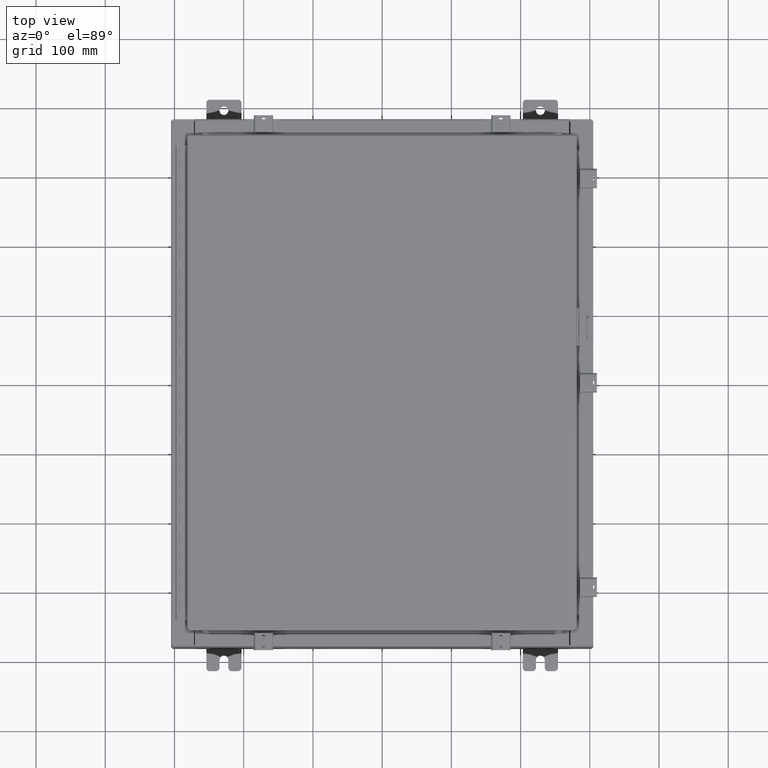
[diagram: clean part render]
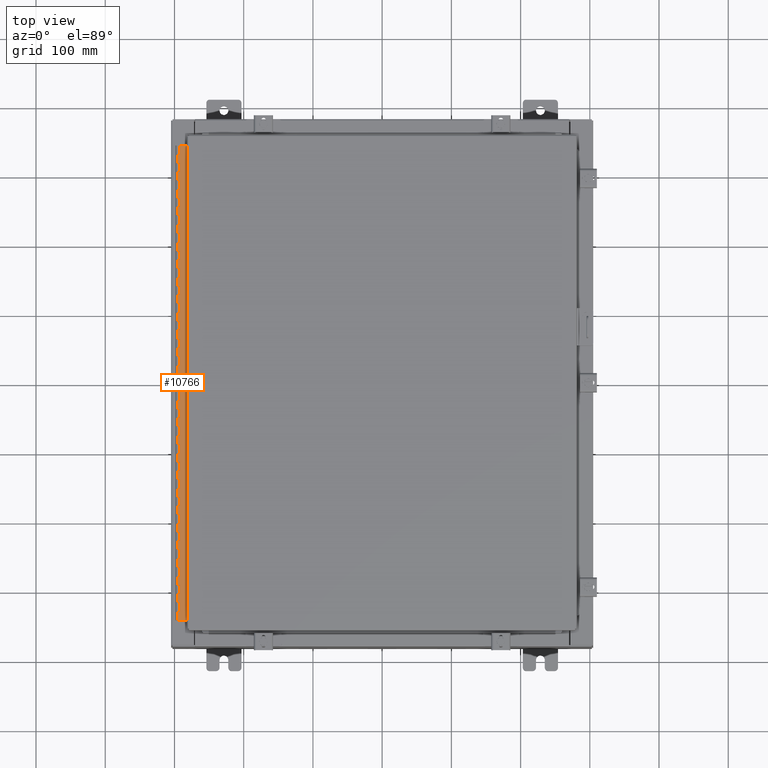
[diagram: same view with one face highlighted and labeled with its STEP entity id]
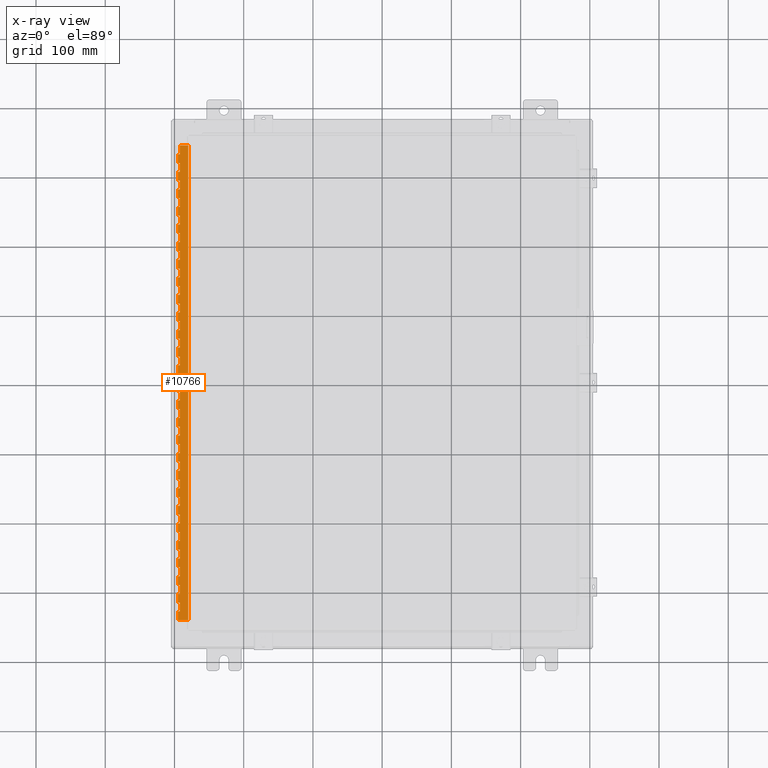
[diagram: x-ray of the same camera — body ghosted, the highlighted face saturated]
A machine part, top view. The second image highlights one B-rep face of the part: STEP entity #10766.
The next image is the same camera in x-ray: the body ghosted, the highlighted face saturated — about 0% of this face is hidden behind the body in this view.
In plain terms, the highlighted planar face has unit normal (-0, -0, 1).
Its self-contained STEP definition (entity closure, byte-faithful):
#5 = DIRECTION ( 'NONE',  ( 0.0000000000000000000, -0.0000000000000000000, -1.000000000000000000 ) ) ;
#18 = VECTOR ( 'NONE', #5, 39.37007874015748100 ) ;
#94 = LINE ( 'NONE', #16566, #14529 ) ;
#233 = CARTESIAN_POINT ( 'NONE',  ( -0.6869999999999982800, 0.5504999999999997700, -2.000000000000000000 ) ) ;
#381 = EDGE_CURVE ( 'NONE', #15264, #31116, #32355, .T. ) ;
#426 = VECTOR ( 'NONE', #9770, 39.37007874015748100 ) ;
#435 = VERTEX_POINT ( 'NONE', #33751 ) ;
#507 = CARTESIAN_POINT ( 'NONE',  ( -0.6869999999999973900, 0.8004999999999995500, -21.00000000000000000 ) ) ;
#542 = DIRECTION ( 'NONE',  ( 3.389037039080723100E-015, 1.000000000000000000, -0.0000000000000000000 ) ) ;
#567 = VECTOR ( 'NONE', #17865, 39.37007874015748100 ) ;
#612 = VECTOR ( 'NONE', #25745, 39.37007874015748100 ) ;
#626 = CARTESIAN_POINT ( 'NONE',  ( -0.6869999999999978300, 0.6754999999999996600, -27.00000000000000000 ) ) ;
#721 = DIRECTION ( 'NONE',  ( -3.389037039080723100E-015, -1.000000000000000000, 0.0000000000000000000 ) ) ;
#751 = VECTOR ( 'NONE', #26426, 39.37007874015748100 ) ;
#760 = ORIENTED_EDGE ( 'NONE', *, *, #5551, .T. ) ;
#789 = ORIENTED_EDGE ( 'NONE', *, *, #19806, .F. ) ;
#795 = ORIENTED_EDGE ( 'NONE', *, *, #18633, .F. ) ;
#831 = DIRECTION ( 'NONE',  ( -3.389037039080723100E-015, -1.000000000000000000, 0.0000000000000000000 ) ) ;
#838 = VECTOR ( 'NONE', #9070, 39.37007874015748100 ) ;
#878 = ORIENTED_EDGE ( 'NONE', *, *, #23142, .F. ) ;
#895 = DIRECTION ( 'NONE',  ( 0.0000000000000000000, -0.0000000000000000000, -1.000000000000000000 ) ) ;
#896 = CARTESIAN_POINT ( 'NONE',  ( -0.6869999999999998300, 0.07549999999999991400, -27.00000000000000000 ) ) ;
#913 = ORIENTED_EDGE ( 'NONE', *, *, #2594, .F. ) ;
#990 = CARTESIAN_POINT ( 'NONE',  ( -0.6869999999999982800, 0.5504999999999997700, -13.50000000000000000 ) ) ;
#1124 = DIRECTION ( 'NONE',  ( 3.389037039080723100E-015, 1.000000000000000000, -0.0000000000000000000 ) ) ;
#1143 = CARTESIAN_POINT ( 'NONE',  ( -0.6869999999999973900, 0.8004999999999995500, -3.500000000000000000 ) ) ;
#1204 = ORIENTED_EDGE ( 'NONE', *, *, #31086, .F. ) ;
#1315 = VERTEX_POINT ( 'NONE', #26710 ) ;
#1319 = LINE ( 'NONE', #17420, #15782 ) ;
#1373 = DIRECTION ( 'NONE',  ( -3.389037039080723100E-015, -1.000000000000000000, 0.0000000000000000000 ) ) ;
#1385 = LINE ( 'NONE', #5455, #8142 ) ;
#1407 = CARTESIAN_POINT ( 'NONE',  ( -0.6869999999999978300, 0.6754999999999996600, -22.50000000000000000 ) ) ;
#1431 = ORIENTED_EDGE ( 'NONE', *, *, #11291, .F. ) ;
#1507 = CARTESIAN_POINT ( 'NONE',  ( -0.6869999999999998300, 0.07549999999999991400, -27.00000000000000000 ) ) ;
#1528 = CARTESIAN_POINT ( 'NONE',  ( -0.6869999999999982800, 0.5504999999999997700, -20.50000000000000400 ) ) ;
#1619 = CARTESIAN_POINT ( 'NONE',  ( -0.6869999999999973900, 0.8004999999999995500, -16.50000000000000000 ) ) ;
#1623 = LINE ( 'NONE', #6207, #23825 ) ;
#1638 = CARTESIAN_POINT ( 'NONE',  ( -0.6869999999999982800, 0.5504999999999997700, -20.50000000000000400 ) ) ;
#1643 = ORIENTED_EDGE ( 'NONE', *, *, #15942, .F. ) ;
#1667 = ORIENTED_EDGE ( 'NONE', *, *, #27743, .T. ) ;
#1700 = LINE ( 'NONE', #26995, #31562 ) ;
#1757 = VERTEX_POINT ( 'NONE', #28831 ) ;
#1799 = CARTESIAN_POINT ( 'NONE',  ( -0.6869999999999982800, 0.5504999999999997700, -10.00000000000000000 ) ) ;
#1811 = DIRECTION ( 'NONE',  ( 3.389037039080723100E-015, 1.000000000000000000, -0.0000000000000000000 ) ) ;
#1849 = CARTESIAN_POINT ( 'NONE',  ( -0.6869999999999973900, 0.8004999999999995500, -17.50000000000000000 ) ) ;
#1874 = CARTESIAN_POINT ( 'NONE',  ( -0.6869999999999982800, 0.5504999999999997700, -16.50000000000000000 ) ) ;
#1923 = CARTESIAN_POINT ( 'NONE',  ( -0.6869999999999982800, 0.5504999999999997700, -24.99999999999999600 ) ) ;
#1976 = CARTESIAN_POINT ( 'NONE',  ( -0.6869999999999978300, 0.6754999999999996600, -27.00000000000000000 ) ) ;
#2007 = EDGE_CURVE ( 'NONE', #1757, #11181, #18738, .T. ) ;
#2029 = VERTEX_POINT ( 'NONE', #17808 ) ;
#2109 = ORIENTED_EDGE ( 'NONE', *, *, #18523, .F. ) ;
#2174 = DIRECTION ( 'NONE',  ( 0.0000000000000000000, -0.0000000000000000000, -1.000000000000000000 ) ) ;
#2250 = LINE ( 'NONE', #34374, #24439 ) ;
#2317 = LINE ( 'NONE', #9422, #34024 ) ;
#2324 = CARTESIAN_POINT ( 'NONE',  ( -0.6869999999999982800, 0.5504999999999997700, -20.00000000000000000 ) ) ;
#2375 = VECTOR ( 'NONE', #3800, 39.37007874015748100 ) ;
#2404 = LINE ( 'NONE', #13963, #612 ) ;
#2407 = ORIENTED_EDGE ( 'NONE', *, *, #10291, .F. ) ;
#2501 = EDGE_CURVE ( 'NONE', #15245, #14161, #2404, .T. ) ;
#2594 = EDGE_CURVE ( 'NONE', #6133, #25878, #29543, .T. ) ;
#2605 = EDGE_CURVE ( 'NONE', #22899, #37458, #14160, .T. ) ;
#2632 = CARTESIAN_POINT ( 'NONE',  ( -0.6869999999999998300, 0.07549999999999991400, 0.0000000000000000000 ) ) ;
#2716 = VECTOR ( 'NONE', #20664, 39.37007874015748100 ) ;
#2758 = CARTESIAN_POINT ( 'NONE',  ( -0.6869999999999978300, 0.6754999999999996600, -26.50000000000000400 ) ) ;
#2798 = VECTOR ( 'NONE', #10327, 39.37007874015748100 ) ;
#2855 = CARTESIAN_POINT ( 'NONE',  ( -0.6869999999999982800, 0.5504999999999997700, -11.99999999999999800 ) ) ;
#2963 = VERTEX_POINT ( 'NONE', #18218 ) ;
#2962 = EDGE_CURVE ( 'NONE', #14161, #36340, #31331, .T. ) ;
#2973 = LINE ( 'NONE', #32873, #32833 ) ;
#2997 = CARTESIAN_POINT ( 'NONE',  ( -0.6869999999999978300, 0.6754999999999996600, -7.000000000000000000 ) ) ;
#3028 = VECTOR ( 'NONE', #9527, 39.37007874015748100 ) ;
#3035 = DIRECTION ( 'NONE',  ( 3.389037039080723100E-015, 1.000000000000000000, -0.0000000000000000000 ) ) ;
#3052 = ORIENTED_EDGE ( 'NONE', *, *, #8805, .F. ) ;
#3095 = CARTESIAN_POINT ( 'NONE',  ( -0.6869999999999978300, 0.6754999999999996600, -27.00000000000000000 ) ) ;
#3125 = EDGE_CURVE ( 'NONE', #36464, #14020, #33583, .T. ) ;
#3177 = VERTEX_POINT ( 'NONE', #13507 ) ;
#3198 = ORIENTED_EDGE ( 'NONE', *, *, #16015, .F. ) ;
#3288 = CARTESIAN_POINT ( 'NONE',  ( -0.6869999999999982800, 0.5504999999999997700, -2.500000000000000000 ) ) ;
#3293 = CARTESIAN_POINT ( 'NONE',  ( -0.6869999999999973900, 0.8004999999999995500, -2.500000000000000000 ) ) ;
#3347 = ORIENTED_EDGE ( 'NONE', *, *, #20328, .F. ) ;
#3388 = LINE ( 'NONE', #27344, #33258 ) ;
#3423 = CARTESIAN_POINT ( 'NONE',  ( -0.6869999999999982800, 0.5504999999999997700, -15.50000000000000000 ) ) ;
#3493 = CARTESIAN_POINT ( 'NONE',  ( -0.6869999999999978300, 0.6754999999999996600, -9.500000000000000000 ) ) ;
#3577 = ORIENTED_EDGE ( 'NONE', *, *, #4939, .F. ) ;
#3606 = CARTESIAN_POINT ( 'NONE',  ( -0.6869999999999973900, 0.8004999999999995500, -13.50000000000000000 ) ) ;
#3638 = ORIENTED_EDGE ( 'NONE', *, *, #18962, .F. ) ;
#3642 = VERTEX_POINT ( 'NONE', #30146 ) ;
#3732 = CARTESIAN_POINT ( 'NONE',  ( -0.6869999999999973900, 0.8004999999999995500, -24.50000000000000000 ) ) ;
#3800 = DIRECTION ( 'NONE',  ( 0.0000000000000000000, 0.0000000000000000000, 1.000000000000000000 ) ) ;
#3837 = CARTESIAN_POINT ( 'NONE',  ( -0.6869999999999978300, 0.6754999999999996600, -7.499999999999999100 ) ) ;
#3839 = EDGE_CURVE ( 'NONE', #4989, #27154, #7728, .T. ) ;
#3879 = VECTOR ( 'NONE', #18460, 39.37007874015748100 ) ;
#4064 = VERTEX_POINT ( 'NONE', #36328 ) ;
#4084 = PLANE ( 'NONE',  #30426 ) ;
#4098 = EDGE_CURVE ( 'NONE', #19169, #35803, #19019, .T. ) ;
#4100 = VERTEX_POINT ( 'NONE', #30582 ) ;
#4145 = ORIENTED_EDGE ( 'NONE', *, *, #21214, .T. ) ;
#4152 = VERTEX_POINT ( 'NONE', #10462 ) ;
#4235 = DIRECTION ( 'NONE',  ( 0.0000000000000000000, -0.0000000000000000000, -1.000000000000000000 ) ) ;
#4349 = CARTESIAN_POINT ( 'NONE',  ( -0.6869999999999978300, 0.6754999999999996600, -5.000000000000000000 ) ) ;
#4356 = VERTEX_POINT ( 'NONE', #2632 ) ;
#4383 = DIRECTION ( 'NONE',  ( 0.0000000000000000000, 0.0000000000000000000, 1.000000000000000000 ) ) ;
#4428 = VECTOR ( 'NONE', #19313, 39.37007874015748100 ) ;
#4488 = EDGE_CURVE ( 'NONE', #3642, #14020, #21738, .T. ) ;
#4593 = CARTESIAN_POINT ( 'NONE',  ( -0.6869999999999982800, 0.5504999999999997700, -6.499999999999999100 ) ) ;
#4625 = ORIENTED_EDGE ( 'NONE', *, *, #29768, .F. ) ;
#4675 = CARTESIAN_POINT ( 'NONE',  ( -0.6869999999999973900, 0.8004999999999995500, -14.99999999999999800 ) ) ;
#4714 = EDGE_CURVE ( 'NONE', #35873, #7752, #23982, .T. ) ;
#4741 = DIRECTION ( 'NONE',  ( 3.389037039080723100E-015, 1.000000000000000000, -0.0000000000000000000 ) ) ;
#4839 = CARTESIAN_POINT ( 'NONE',  ( -0.6869999999999978300, 0.6754999999999996600, -27.00000000000000000 ) ) ;
#4844 = LINE ( 'NONE', #12182, #34738 ) ;
#4930 = CARTESIAN_POINT ( 'NONE',  ( -0.6869999999999982800, 0.5504999999999997700, -17.00000000000000000 ) ) ;
#4939 = EDGE_CURVE ( 'NONE', #10858, #3642, #1319, .T. ) ;
#4973 = CARTESIAN_POINT ( 'NONE',  ( -0.6869999999999978300, 0.6754999999999996600, -14.99999999999999800 ) ) ;
#4989 = VERTEX_POINT ( 'NONE', #233 ) ;
#4996 = ORIENTED_EDGE ( 'NONE', *, *, #22631, .F. ) ;
#5059 = ORIENTED_EDGE ( 'NONE', *, *, #21477, .F. ) ;
#5179 = VERTEX_POINT ( 'NONE', #24346 ) ;
#5197 = LINE ( 'NONE', #9835, #35095 ) ;
#5228 = EDGE_CURVE ( 'NONE', #15245, #12110, #20336, .T. ) ;
#5373 = LINE ( 'NONE', #34850, #27513 ) ;
#5424 = CARTESIAN_POINT ( 'NONE',  ( -0.6869999999999978300, 0.6754999999999996600, -27.00000000000000000 ) ) ;
#5455 = CARTESIAN_POINT ( 'NONE',  ( -0.6869999999999982800, 0.5504999999999997700, -22.50000000000000000 ) ) ;
#5551 = EDGE_CURVE ( 'NONE', #11385, #27006, #33406, .T. ) ;
#5580 = LINE ( 'NONE', #26772, #27714 ) ;
#5728 = LINE ( 'NONE', #31406, #35600 ) ;
#5742 = VECTOR ( 'NONE', #10112, 39.37007874015748100 ) ;
#5798 = EDGE_CURVE ( 'NONE', #34338, #9381, #18952, .T. ) ;
#5817 = LINE ( 'NONE', #15262, #36622 ) ;
#5824 = CARTESIAN_POINT ( 'NONE',  ( -0.6869999999999982800, 0.5504999999999997700, -14.49999999999999800 ) ) ;
#5931 = CARTESIAN_POINT ( 'NONE',  ( -0.6869999999999982800, 0.5504999999999997700, -24.50000000000000000 ) ) ;
#5961 = EDGE_CURVE ( 'NONE', #23840, #7745, #13510, .T. ) ;
#6041 = CARTESIAN_POINT ( 'NONE',  ( -0.6869999999999978300, 0.6754999999999996600, -2.500000000000000000 ) ) ;
#6050 = VERTEX_POINT ( 'NONE', #21573 ) ;
#6133 = VERTEX_POINT ( 'NONE', #24835 ) ;
#6165 = CARTESIAN_POINT ( 'NONE',  ( -0.6869999999999973900, 0.8004999999999995500, -17.99999999999999600 ) ) ;
#6207 = CARTESIAN_POINT ( 'NONE',  ( -0.6869999999999973900, 0.8004999999999995500, -23.00000000000000000 ) ) ;
#6231 = CARTESIAN_POINT ( 'NONE',  ( -0.6869999999999982800, 0.5504999999999997700, -21.50000000000000400 ) ) ;
#6250 = VECTOR ( 'NONE', #28087, 39.37007874015748100 ) ;
#6294 = CARTESIAN_POINT ( 'NONE',  ( -0.6869999999999982800, 0.5504999999999997700, -3.500000000000000000 ) ) ;
#6302 = DIRECTION ( 'NONE',  ( 3.389037039080723100E-015, 1.000000000000000000, -0.0000000000000000000 ) ) ;
#6322 = VECTOR ( 'NONE', #15261, 39.37007874015748100 ) ;
#6333 = CARTESIAN_POINT ( 'NONE',  ( -0.6869999999999973900, 0.8004999999999995500, -26.50000000000000400 ) ) ;
#6354 = CARTESIAN_POINT ( 'NONE',  ( -0.6869999999999978300, 0.6754999999999996600, -14.00000000000000000 ) ) ;
#6365 = VERTEX_POINT ( 'NONE', #31643 ) ;
#6423 = LINE ( 'NONE', #1849, #28577 ) ;
#6475 = CARTESIAN_POINT ( 'NONE',  ( -0.6869999999999973900, 0.8004999999999995500, -2.000000000000000000 ) ) ;
#6535 = CARTESIAN_POINT ( 'NONE',  ( -0.6869999999999982800, 0.5504999999999997700, -0.5000000000000000000 ) ) ;
#6584 = CARTESIAN_POINT ( 'NONE',  ( -0.6869999999999982800, 0.5504999999999997700, -11.50000000000000000 ) ) ;
#6604 = EDGE_CURVE ( 'NONE', #35480, #25727, #8014, .T. ) ;
#6640 = CARTESIAN_POINT ( 'NONE',  ( -0.6869999999999978300, 0.6754999999999996600, -27.00000000000000000 ) ) ;
#6775 = VECTOR ( 'NONE', #16229, 39.37007874015748100 ) ;
#6873 = DIRECTION ( 'NONE',  ( -3.389037039080723100E-015, -1.000000000000000000, 0.0000000000000000000 ) ) ;
#6908 = VECTOR ( 'NONE', #17063, 39.37007874015748100 ) ;
#6930 = EDGE_CURVE ( 'NONE', #17125, #3177, #4844, .T. ) ;
#6941 = DIRECTION ( 'NONE',  ( 0.0000000000000000000, -0.0000000000000000000, -1.000000000000000000 ) ) ;
#6944 = VERTEX_POINT ( 'NONE', #9402 ) ;
#6962 = VECTOR ( 'NONE', #20873, 39.37007874015748100 ) ;
#6975 = EDGE_CURVE ( 'NONE', #18297, #31277, #11598, .T. ) ;
#6976 = EDGE_CURVE ( 'NONE', #31212, #23230, #26121, .T. ) ;
#6986 = ORIENTED_EDGE ( 'NONE', *, *, #2605, .F. ) ;
#6989 = VECTOR ( 'NONE', #29718, 39.37007874015748100 ) ;
#7126 = VERTEX_POINT ( 'NONE', #4349 ) ;
#7218 = ORIENTED_EDGE ( 'NONE', *, *, #9998, .F. ) ;
#7223 = CARTESIAN_POINT ( 'NONE',  ( -0.6869999999999973900, 0.8004999999999995500, -11.00000000000000000 ) ) ;
#7230 = LINE ( 'NONE', #35376, #21755 ) ;
#7238 = CARTESIAN_POINT ( 'NONE',  ( -0.6869999999999973900, 0.8004999999999995500, -11.99999999999999800 ) ) ;
#7247 = CARTESIAN_POINT ( 'NONE',  ( -0.6869999999999982800, 0.5504999999999997700, -16.00000000000000000 ) ) ;
#7272 = VECTOR ( 'NONE', #18538, 39.37007874015748100 ) ;
#7283 = LINE ( 'NONE', #20134, #20909 ) ;
#7362 = VECTOR ( 'NONE', #6302, 39.37007874015748100 ) ;
#7365 = EDGE_CURVE ( 'NONE', #28538, #27006, #5728, .T. ) ;
#7475 = ORIENTED_EDGE ( 'NONE', *, *, #381, .F. ) ;
#7481 = VERTEX_POINT ( 'NONE', #26330 ) ;
#7573 = VERTEX_POINT ( 'NONE', #6354 ) ;
#7679 = CARTESIAN_POINT ( 'NONE',  ( -0.6869999999999982800, 0.5504999999999997700, -1.499999999999999800 ) ) ;
#7711 = LINE ( 'NONE', #28013, #24938 ) ;
#7728 = LINE ( 'NONE', #6475, #33995 ) ;
#7738 = DIRECTION ( 'NONE',  ( 0.0000000000000000000, 0.0000000000000000000, 1.000000000000000000 ) ) ;
#7739 = LINE ( 'NONE', #30982, #29908 ) ;
#7745 = VERTEX_POINT ( 'NONE', #27420 ) ;
#7752 = VERTEX_POINT ( 'NONE', #33275 ) ;
#7784 = VECTOR ( 'NONE', #17701, 39.37007874015748100 ) ;
#7812 = LINE ( 'NONE', #28423, #6908 ) ;
#7861 = CARTESIAN_POINT ( 'NONE',  ( -0.6869999999999982800, 0.5504999999999997700, -11.50000000000000000 ) ) ;
#7916 = CARTESIAN_POINT ( 'NONE',  ( -0.6869999999999978300, 0.6754999999999996600, -22.00000000000000000 ) ) ;
#7931 = VECTOR ( 'NONE', #36312, 39.37007874015748100 ) ;
#8014 = LINE ( 'NONE', #35822, #31111 ) ;
#8037 = CARTESIAN_POINT ( 'NONE',  ( -0.6869999999999978300, 0.6754999999999996600, -20.00000000000000000 ) ) ;
#8040 = EDGE_CURVE ( 'NONE', #26537, #32184, #25537, .T. ) ;
#8097 = CARTESIAN_POINT ( 'NONE',  ( -0.6869999999999978300, 0.6754999999999996600, -27.00000000000000000 ) ) ;
#8140 = CARTESIAN_POINT ( 'NONE',  ( -0.6869999999999978300, 0.6754999999999996600, -17.00000000000000000 ) ) ;
#8142 = VECTOR ( 'NONE', #8476, 39.37007874015748100 ) ;
#8160 = ORIENTED_EDGE ( 'NONE', *, *, #20722, .F. ) ;
#8429 = CARTESIAN_POINT ( 'NONE',  ( -0.6869999999999978300, 0.6754999999999996600, -12.49999999999999800 ) ) ;
#8439 = EDGE_CURVE ( 'NONE', #23441, #19158, #19636, .T. ) ;
#8476 = DIRECTION ( 'NONE',  ( 0.0000000000000000000, -0.0000000000000000000, -1.000000000000000000 ) ) ;
#8510 = VERTEX_POINT ( 'NONE', #18475 ) ;
#8525 = CARTESIAN_POINT ( 'NONE',  ( -0.6869999999999978300, 0.6754999999999996600, -24.99999999999999600 ) ) ;
#8593 = ORIENTED_EDGE ( 'NONE', *, *, #28258, .F. ) ;
#8594 = CARTESIAN_POINT ( 'NONE',  ( -0.6869999999999982800, 0.5504999999999997700, -21.50000000000000400 ) ) ;
#8613 = DIRECTION ( 'NONE',  ( 3.369016658928398200E-015, 1.000000000000000000, 0.0000000000000000000 ) ) ;
#8616 = VECTOR ( 'NONE', #36104, 39.37007874015748100 ) ;
#8625 = ORIENTED_EDGE ( 'NONE', *, *, #35766, .T. ) ;
#8642 = EDGE_CURVE ( 'NONE', #32184, #25871, #26832, .T. ) ;
#8764 = ORIENTED_EDGE ( 'NONE', *, *, #21652, .F. ) ;
#8805 = EDGE_CURVE ( 'NONE', #30928, #7481, #7812, .T. ) ;
#8904 = CARTESIAN_POINT ( 'NONE',  ( -0.6869999999999978300, 0.6754999999999996600, -27.00000000000000000 ) ) ;
#9044 = ORIENTED_EDGE ( 'NONE', *, *, #22641, .T. ) ;
#9055 = DIRECTION ( 'NONE',  ( -3.389037039080723100E-015, -1.000000000000000000, 0.0000000000000000000 ) ) ;
#9070 = DIRECTION ( 'NONE',  ( 0.0000000000000000000, 0.0000000000000000000, 1.000000000000000000 ) ) ;
#9099 = CARTESIAN_POINT ( 'NONE',  ( -0.6869999999999982800, 0.5504999999999997700, -19.00000000000000000 ) ) ;
#9118 = DIRECTION ( 'NONE',  ( 0.0000000000000000000, -0.0000000000000000000, -1.000000000000000000 ) ) ;
#9142 = LINE ( 'NONE', #11557, #2375 ) ;
#9184 = LINE ( 'NONE', #15023, #25498 ) ;
#9202 = CARTESIAN_POINT ( 'NONE',  ( -0.6869999999999978300, 0.6754999999999996600, -9.000000000000000000 ) ) ;
#9213 = VECTOR ( 'NONE', #9055, 39.37007874015748100 ) ;
#9229 = CARTESIAN_POINT ( 'NONE',  ( -0.6869999999999982800, 0.5504999999999997700, -13.50000000000000000 ) ) ;
#9276 = CARTESIAN_POINT ( 'NONE',  ( -0.6869999999999973900, 0.8004999999999995500, -19.50000000000000000 ) ) ;
#9359 = ORIENTED_EDGE ( 'NONE', *, *, #6604, .F. ) ;
#9381 = VERTEX_POINT ( 'NONE', #8140 ) ;
#9389 = ORIENTED_EDGE ( 'NONE', *, *, #30068, .T. ) ;
#9402 = CARTESIAN_POINT ( 'NONE',  ( -0.6869999999999982800, 0.5504999999999997700, -12.99999999999999800 ) ) ;
#9422 = CARTESIAN_POINT ( 'NONE',  ( -0.6869999999999982800, 0.5504999999999997700, -8.500000000000000000 ) ) ;
#9466 = CARTESIAN_POINT ( 'NONE',  ( -0.6869999999999982800, 0.5504999999999997700, -0.5000000000000000000 ) ) ;
#9495 = VERTEX_POINT ( 'NONE', #11416 ) ;
#9527 = DIRECTION ( 'NONE',  ( 0.0000000000000000000, 0.0000000000000000000, 1.000000000000000000 ) ) ;
#9538 = DIRECTION ( 'NONE',  ( 0.0000000000000000000, 0.0000000000000000000, 1.000000000000000000 ) ) ;
#9566 = DIRECTION ( 'NONE',  ( -3.389037039080723100E-015, -1.000000000000000000, 0.0000000000000000000 ) ) ;
#9569 = ORIENTED_EDGE ( 'NONE', *, *, #10674, .F. ) ;
#9656 = DIRECTION ( 'NONE',  ( -3.389037039080723100E-015, -1.000000000000000000, 0.0000000000000000000 ) ) ;
#9685 = DIRECTION ( 'NONE',  ( 0.0000000000000000000, -0.0000000000000000000, -1.000000000000000000 ) ) ;
#9724 = DIRECTION ( 'NONE',  ( 0.0000000000000000000, -0.0000000000000000000, -1.000000000000000000 ) ) ;
#9738 = EDGE_CURVE ( 'NONE', #10888, #18076, #7739, .T. ) ;
#9741 = EDGE_CURVE ( 'NONE', #11385, #19169, #94, .T. ) ;
#9770 = DIRECTION ( 'NONE',  ( -3.389037039080723100E-015, -1.000000000000000000, 0.0000000000000000000 ) ) ;
#9794 = LINE ( 'NONE', #29521, #10709 ) ;
#9797 = DIRECTION ( 'NONE',  ( 0.0000000000000000000, -0.0000000000000000000, -1.000000000000000000 ) ) ;
#9830 = LINE ( 'NONE', #21745, #15731 ) ;
#9835 = CARTESIAN_POINT ( 'NONE',  ( -0.6870000000000022800, -0.6245000000000003900, 0.0000000000000000000 ) ) ;
#9878 = CARTESIAN_POINT ( 'NONE',  ( -0.6870000000000022800, -0.6245000000000003900, -27.00000000000000000 ) ) ;
#9994 = VECTOR ( 'NONE', #15042, 39.37007874015748100 ) ;
#9998 = EDGE_CURVE ( 'NONE', #29955, #23838, #30866, .T. ) ;
#10026 = VERTEX_POINT ( 'NONE', #9202 ) ;
#10060 = VERTEX_POINT ( 'NONE', #23895 ) ;
#10108 = EDGE_CURVE ( 'NONE', #24459, #4989, #27220, .T. ) ;
#10112 = DIRECTION ( 'NONE',  ( 3.389037039080723100E-015, 1.000000000000000000, -0.0000000000000000000 ) ) ;
#10192 = VECTOR ( 'NONE', #36058, 39.37007874015748100 ) ;
#10210 = DIRECTION ( 'NONE',  ( 0.0000000000000000000, 0.0000000000000000000, 1.000000000000000000 ) ) ;
#10291 = EDGE_CURVE ( 'NONE', #34338, #23241, #6423, .T. ) ;
#10315 = CARTESIAN_POINT ( 'NONE',  ( -0.6869999999999978300, 0.6754999999999996600, -27.00000000000000000 ) ) ;
#10327 = DIRECTION ( 'NONE',  ( 0.0000000000000000000, 0.0000000000000000000, 1.000000000000000000 ) ) ;
#10462 = CARTESIAN_POINT ( 'NONE',  ( -0.6869999999999982800, 0.5504999999999997700, -5.000000000000000000 ) ) ;
#10485 = VERTEX_POINT ( 'NONE', #2855 ) ;
#10549 = ORIENTED_EDGE ( 'NONE', *, *, #4098, .F. ) ;
#10648 = ORIENTED_EDGE ( 'NONE', *, *, #2501, .F. ) ;
#10674 = EDGE_CURVE ( 'NONE', #34650, #6133, #19530, .T. ) ;
#10709 = VECTOR ( 'NONE', #12176, 39.37007874015748100 ) ;
#10766 = ADVANCED_FACE ( 'NONE', ( #23601 ), #4084, .T. ) ;
#10829 = VECTOR ( 'NONE', #32101, 39.37007874015748100 ) ;
#10858 = VERTEX_POINT ( 'NONE', #4593 ) ;
#10881 = VERTEX_POINT ( 'NONE', #33435 ) ;
#10888 = VERTEX_POINT ( 'NONE', #36505 ) ;
#10940 = CARTESIAN_POINT ( 'NONE',  ( -0.6869999999999978300, 0.6754999999999996600, -4.000000000000000000 ) ) ;
#10955 = VERTEX_POINT ( 'NONE', #19397 ) ;
#10966 = EDGE_CURVE ( 'NONE', #11998, #10881, #32607, .T. ) ;
#11011 = EDGE_CURVE ( 'NONE', #6365, #3177, #7711, .T. ) ;
#11079 = ORIENTED_EDGE ( 'NONE', *, *, #17538, .T. ) ;
#11181 = VERTEX_POINT ( 'NONE', #11676 ) ;
#11211 = ORIENTED_EDGE ( 'NONE', *, *, #5228, .T. ) ;
#11213 = VECTOR ( 'NONE', #34674, 39.37007874015748100 ) ;
#11222 = VECTOR ( 'NONE', #35010, 39.37007874015748100 ) ;
#11291 = EDGE_CURVE ( 'NONE', #10888, #12767, #7230, .T. ) ;
#11345 = ORIENTED_EDGE ( 'NONE', *, *, #32465, .F. ) ;
#11346 = ORIENTED_EDGE ( 'NONE', *, *, #6930, .F. ) ;
#11385 = VERTEX_POINT ( 'NONE', #32944 ) ;
#11416 = CARTESIAN_POINT ( 'NONE',  ( -0.6869999999999978300, 0.6754999999999996600, -10.50000000000000000 ) ) ;
#11448 = DIRECTION ( 'NONE',  ( -3.389037039080723100E-015, -1.000000000000000000, 0.0000000000000000000 ) ) ;
#11475 = CARTESIAN_POINT ( 'NONE',  ( -0.6869999999999978300, 0.6754999999999996600, -27.00000000000000000 ) ) ;
#11482 = LINE ( 'NONE', #17189, #25093 ) ;
#11512 = EDGE_CURVE ( 'NONE', #12066, #1315, #14466, .T. ) ;
#11540 = LINE ( 'NONE', #1143, #3879 ) ;
#11542 = ORIENTED_EDGE ( 'NONE', *, *, #22595, .F. ) ;
#11557 = CARTESIAN_POINT ( 'NONE',  ( -0.6869999999999978300, 0.6754999999999996600, -27.00000000000000000 ) ) ;
#11584 = ORIENTED_EDGE ( 'NONE', *, *, #4488, .F. ) ;
#11598 = LINE ( 'NONE', #3732, #18419 ) ;
#11676 = CARTESIAN_POINT ( 'NONE',  ( -0.6869999999999982800, 0.5504999999999997700, -23.50000000000000000 ) ) ;
#11720 = VECTOR ( 'NONE', #14402, 39.37007874015748100 ) ;
#11773 = EDGE_CURVE ( 'NONE', #36832, #4064, #28457, .T. ) ;
#11796 = CARTESIAN_POINT ( 'NONE',  ( -0.6869999999999973900, 0.8004999999999995500, -4.000000000000000000 ) ) ;
#11827 = VECTOR ( 'NONE', #9685, 39.37007874015748100 ) ;
#11836 = VERTEX_POINT ( 'NONE', #23824 ) ;
#11838 = CARTESIAN_POINT ( 'NONE',  ( -0.6869999999999973900, 0.8004999999999995500, -9.500000000000000000 ) ) ;
#11912 = LINE ( 'NONE', #626, #6962 ) ;
#11994 = CARTESIAN_POINT ( 'NONE',  ( -0.6869999999999978300, 0.6754999999999996600, -14.49999999999999800 ) ) ;
#11998 = VERTEX_POINT ( 'NONE', #1407 ) ;
#12066 = VERTEX_POINT ( 'NONE', #22296 ) ;
#12110 = VERTEX_POINT ( 'NONE', #33917 ) ;
#12151 = CARTESIAN_POINT ( 'NONE',  ( -0.6869999999999978300, 0.6754999999999996600, -15.50000000000000000 ) ) ;
#12158 = VECTOR ( 'NONE', #9118, 39.37007874015748100 ) ;
#12176 = DIRECTION ( 'NONE',  ( -3.389037039080723100E-015, -1.000000000000000000, 0.0000000000000000000 ) ) ;
#12182 = CARTESIAN_POINT ( 'NONE',  ( -0.6869999999999973900, 0.8004999999999995500, -19.00000000000000000 ) ) ;
#12197 = ORIENTED_EDGE ( 'NONE', *, *, #22916, .F. ) ;
#12240 = EDGE_CURVE ( 'NONE', #9495, #31307, #26621, .T. ) ;
#12323 = CARTESIAN_POINT ( 'NONE',  ( -0.6869999999999978300, 0.6754999999999996600, -27.00000000000000000 ) ) ;
#12327 = VECTOR ( 'NONE', #33936, 39.37007874015748100 ) ;
#12346 = EDGE_CURVE ( 'NONE', #35803, #2029, #31599, .T. ) ;
#12352 = EDGE_CURVE ( 'NONE', #23840, #7126, #17130, .T. ) ;
#12408 = EDGE_CURVE ( 'NONE', #7752, #23230, #5817, .T. ) ;
#12457 = EDGE_CURVE ( 'NONE', #25102, #36832, #28871, .T. ) ;
#12512 = CARTESIAN_POINT ( 'NONE',  ( -0.6869999999999982800, 0.5504999999999997700, -17.50000000000000000 ) ) ;
#12531 = ORIENTED_EDGE ( 'NONE', *, *, #35866, .F. ) ;
#12571 = ORIENTED_EDGE ( 'NONE', *, *, #7365, .F. ) ;
#12573 = LINE ( 'NONE', #7238, #17585 ) ;
#12579 = VECTOR ( 'NONE', #27454, 39.37007874015748100 ) ;
#12580 = EDGE_CURVE ( 'NONE', #25684, #18162, #9830, .T. ) ;
#12608 = LINE ( 'NONE', #14413, #27083 ) ;
#12688 = CARTESIAN_POINT ( 'NONE',  ( -0.6869999999999973900, 0.8004999999999995500, -1.499999999999999800 ) ) ;
#12690 = CARTESIAN_POINT ( 'NONE',  ( -0.6869999999999973900, 0.8004999999999995500, -10.00000000000000000 ) ) ;
#12713 = CARTESIAN_POINT ( 'NONE',  ( -0.6869999999999982800, 0.5504999999999997700, -4.500000000000000000 ) ) ;
#12767 = VERTEX_POINT ( 'NONE', #25374 ) ;
#12796 = DIRECTION ( 'NONE',  ( 3.369016658928398200E-015, 1.000000000000000000, 0.0000000000000000000 ) ) ;
#12802 = CARTESIAN_POINT ( 'NONE',  ( -0.6869999999999978300, 0.6754999999999996600, -25.50000000000000400 ) ) ;
#12811 = LINE ( 'NONE', #3606, #27290 ) ;
#12975 = DIRECTION ( 'NONE',  ( -3.389037039080723100E-015, -1.000000000000000000, 0.0000000000000000000 ) ) ;
#13001 = ORIENTED_EDGE ( 'NONE', *, *, #24904, .F. ) ;
#13052 = EDGE_CURVE ( 'NONE', #9495, #22899, #9794, .T. ) ;
#13065 = EDGE_CURVE ( 'NONE', #6365, #4100, #32001, .T. ) ;
#13109 = CARTESIAN_POINT ( 'NONE',  ( -0.6869999999999978300, 0.6754999999999996600, -27.00000000000000000 ) ) ;
#13190 = CARTESIAN_POINT ( 'NONE',  ( -0.6869999999999973900, 0.8004999999999995500, -5.000000000000000000 ) ) ;
#13238 = DIRECTION ( 'NONE',  ( 0.0000000000000000000, 0.0000000000000000000, 1.000000000000000000 ) ) ;
#13285 = LINE ( 'NONE', #21783, #21931 ) ;
#13305 = LINE ( 'NONE', #34030, #21056 ) ;
#13361 = EDGE_CURVE ( 'NONE', #32783, #9381, #25662, .T. ) ;
#13507 = CARTESIAN_POINT ( 'NONE',  ( -0.6869999999999978300, 0.6754999999999996600, -19.00000000000000000 ) ) ;
#13510 = LINE ( 'NONE', #21328, #34810 ) ;
#13784 = EDGE_CURVE ( 'NONE', #15318, #4356, #33315, .T. ) ;
#13925 = ORIENTED_EDGE ( 'NONE', *, *, #36959, .F. ) ;
#13930 = LINE ( 'NONE', #7861, #6250 ) ;
#13963 = CARTESIAN_POINT ( 'NONE',  ( -0.6869999999999973900, 0.8004999999999995500, -0.5000000000000000000 ) ) ;
#14010 = VECTOR ( 'NONE', #1124, 39.37007874015748100 ) ;
#14020 = VERTEX_POINT ( 'NONE', #2997 ) ;
#14058 = VERTEX_POINT ( 'NONE', #6041 ) ;
#14160 = LINE ( 'NONE', #16589, #34546 ) ;
#14161 = VERTEX_POINT ( 'NONE', #6535 ) ;
#14262 = LINE ( 'NONE', #19974, #29651 ) ;
#14294 = LINE ( 'NONE', #35896, #28775 ) ;
#14303 = LINE ( 'NONE', #27363, #35595 ) ;
#14402 = DIRECTION ( 'NONE',  ( 0.0000000000000000000, 0.0000000000000000000, 1.000000000000000000 ) ) ;
#14413 = CARTESIAN_POINT ( 'NONE',  ( -0.6869999999999973900, 0.8004999999999995500, -24.99999999999999600 ) ) ;
#14442 = DIRECTION ( 'NONE',  ( -3.389037039080723100E-015, -1.000000000000000000, 0.0000000000000000000 ) ) ;
#14444 = VECTOR ( 'NONE', #26391, 39.37007874015748100 ) ;
#14466 = LINE ( 'NONE', #24853, #6775 ) ;
#14529 = VECTOR ( 'NONE', #19493, 39.37007874015748100 ) ;
#14728 = DIRECTION ( 'NONE',  ( 0.0000000000000000000, 0.0000000000000000000, 1.000000000000000000 ) ) ;
#14759 = CARTESIAN_POINT ( 'NONE',  ( -0.6869999999999978300, 0.6754999999999996600, -27.00000000000000000 ) ) ;
#14923 = CARTESIAN_POINT ( 'NONE',  ( -0.6869999999999982800, 0.5504999999999997700, -9.500000000000000000 ) ) ;
#15006 = EDGE_CURVE ( 'NONE', #36696, #2963, #31355, .T. ) ;
#15022 = LINE ( 'NONE', #8904, #36342 ) ;
#15023 = CARTESIAN_POINT ( 'NONE',  ( -0.6869999999999973900, 0.8004999999999995500, -22.00000000000000000 ) ) ;
#15042 = DIRECTION ( 'NONE',  ( -3.389037039080723100E-015, -1.000000000000000000, 0.0000000000000000000 ) ) ;
#15145 = VECTOR ( 'NONE', #11448, 39.37007874015748100 ) ;
#15147 = ORIENTED_EDGE ( 'NONE', *, *, #26752, .F. ) ;
#15185 = ORIENTED_EDGE ( 'NONE', *, *, #9741, .F. ) ;
#15208 = VERTEX_POINT ( 'NONE', #11994 ) ;
#15217 = VECTOR ( 'NONE', #1811, 39.37007874015748100 ) ;
#15228 = CARTESIAN_POINT ( 'NONE',  ( -0.6869999999999978300, 0.6754999999999996600, -23.00000000000000000 ) ) ;
#15245 = VERTEX_POINT ( 'NONE', #35193 ) ;
#15252 = VECTOR ( 'NONE', #27232, 39.37007874015748100 ) ;
#15261 = DIRECTION ( 'NONE',  ( 0.0000000000000000000, -0.0000000000000000000, -1.000000000000000000 ) ) ;
#15262 = CARTESIAN_POINT ( 'NONE',  ( -0.6869999999999973900, 0.8004999999999995500, -26.00000000000000000 ) ) ;
#15264 = VERTEX_POINT ( 'NONE', #9229 ) ;
#15293 = CARTESIAN_POINT ( 'NONE',  ( -0.6869999999999973900, 0.8004999999999995500, -1.000000000000000000 ) ) ;
#15318 = VERTEX_POINT ( 'NONE', #896 ) ;
#15333 = LINE ( 'NONE', #20364, #18 ) ;
#15335 = VECTOR ( 'NONE', #30936, 39.37007874015748100 ) ;
#15344 = CARTESIAN_POINT ( 'NONE',  ( -0.6869999999999973900, 0.8004999999999995500, -11.50000000000000000 ) ) ;
#15381 = CARTESIAN_POINT ( 'NONE',  ( -0.6869999999999973900, 0.8004999999999995500, -21.50000000000000400 ) ) ;
#15604 = ORIENTED_EDGE ( 'NONE', *, *, #28208, .T. ) ;
#15612 = CARTESIAN_POINT ( 'NONE',  ( -0.6869999999999973900, 0.8004999999999995500, -6.499999999999999100 ) ) ;
#15637 = CARTESIAN_POINT ( 'NONE',  ( -0.6869999999999978300, 0.6754999999999996600, -21.50000000000000400 ) ) ;
#15721 = ORIENTED_EDGE ( 'NONE', *, *, #8642, .F. ) ;
#15731 = VECTOR ( 'NONE', #4383, 39.37007874015748100 ) ;
#15759 = DIRECTION ( 'NONE',  ( -3.389037039080723100E-015, -1.000000000000000000, 0.0000000000000000000 ) ) ;
#15781 = LINE ( 'NONE', #12688, #426 ) ;
#15782 = VECTOR ( 'NONE', #20348, 39.37007874015748100 ) ;
#15790 = ORIENTED_EDGE ( 'NONE', *, *, #30807, .F. ) ;
#15806 = ORIENTED_EDGE ( 'NONE', *, *, #33259, .F. ) ;
#15903 = CARTESIAN_POINT ( 'NONE',  ( -0.6869999999999973900, 0.8004999999999995500, -15.50000000000000000 ) ) ;
#15923 = LINE ( 'NONE', #14923, #567 ) ;
#15939 = CARTESIAN_POINT ( 'NONE',  ( -0.6869999999999982800, 0.5504999999999997700, -9.500000000000000000 ) ) ;
#15942 = EDGE_CURVE ( 'NONE', #1315, #8510, #2317, .T. ) ;
#16015 = EDGE_CURVE ( 'NONE', #6050, #10858, #22699, .T. ) ;
#16032 = LINE ( 'NONE', #16506, #31437 ) ;
#16068 = ORIENTED_EDGE ( 'NONE', *, *, #26366, .T. ) ;
#16076 = ORIENTED_EDGE ( 'NONE', *, *, #6975, .F. ) ;
#16154 = CARTESIAN_POINT ( 'NONE',  ( -0.6869999999999978300, 0.6754999999999996600, -27.00000000000000000 ) ) ;
#16158 = LINE ( 'NONE', #12690, #15252 ) ;
#16191 = ORIENTED_EDGE ( 'NONE', *, *, #20048, .T. ) ;
#16198 = VECTOR ( 'NONE', #20766, 39.37007874015748100 ) ;
#16199 = VERTEX_POINT ( 'NONE', #36783 ) ;
#16229 = DIRECTION ( 'NONE',  ( -3.389037039080723100E-015, -1.000000000000000000, 0.0000000000000000000 ) ) ;
#16297 = DIRECTION ( 'NONE',  ( 3.389037039080723100E-015, 1.000000000000000000, -0.0000000000000000000 ) ) ;
#16330 = ORIENTED_EDGE ( 'NONE', *, *, #11011, .T. ) ;
#16396 = CARTESIAN_POINT ( 'NONE',  ( -0.6869999999999982800, 0.5504999999999997700, -25.50000000000000400 ) ) ;
#16506 = CARTESIAN_POINT ( 'NONE',  ( -0.6869999999999973900, 0.8004999999999995500, -16.00000000000000000 ) ) ;
#16566 = CARTESIAN_POINT ( 'NONE',  ( -0.6869999999999973900, 0.8004999999999995500, -20.50000000000000400 ) ) ;
#16589 = CARTESIAN_POINT ( 'NONE',  ( -0.6869999999999982800, 0.5504999999999997700, -10.50000000000000000 ) ) ;
#16611 = CARTESIAN_POINT ( 'NONE',  ( -0.6869999999999978300, 0.6754999999999996600, -27.00000000000000000 ) ) ;
#16683 = DIRECTION ( 'NONE',  ( 0.0000000000000000000, -0.0000000000000000000, -1.000000000000000000 ) ) ;
#16732 = LINE ( 'NONE', #14759, #10829 ) ;
#16809 = EDGE_CURVE ( 'NONE', #34960, #11836, #19461, .T. ) ;
#16956 = ORIENTED_EDGE ( 'NONE', *, *, #33205, .F. ) ;
#17002 = CARTESIAN_POINT ( 'NONE',  ( -0.6869999999999982800, 0.5504999999999997700, -6.000000000000000900 ) ) ;
#17031 = VECTOR ( 'NONE', #3035, 39.37007874015748100 ) ;
#17032 = DIRECTION ( 'NONE',  ( -3.389037039080723100E-015, -1.000000000000000000, 0.0000000000000000000 ) ) ;
#17063 = DIRECTION ( 'NONE',  ( -3.389037039080723100E-015, -1.000000000000000000, 0.0000000000000000000 ) ) ;
#17125 = VERTEX_POINT ( 'NONE', #9099 ) ;
#17130 = LINE ( 'NONE', #32228, #838 ) ;
#17189 = CARTESIAN_POINT ( 'NONE',  ( -0.6869999999999978300, 0.6754999999999996600, -27.00000000000000000 ) ) ;
#17197 = VERTEX_POINT ( 'NONE', #6584 ) ;
#17299 = ORIENTED_EDGE ( 'NONE', *, *, #4714, .F. ) ;
#17420 = CARTESIAN_POINT ( 'NONE',  ( -0.6869999999999982800, 0.5504999999999997700, -6.499999999999999100 ) ) ;
#17480 = LINE ( 'NONE', #13109, #7931 ) ;
#17538 = EDGE_CURVE ( 'NONE', #24654, #17837, #20405, .T. ) ;
#17572 = CARTESIAN_POINT ( 'NONE',  ( -0.6869999999999978300, 0.6754999999999996600, -10.00000000000000000 ) ) ;
#17585 = VECTOR ( 'NONE', #33311, 39.37007874015748100 ) ;
#17639 = EDGE_CURVE ( 'NONE', #6050, #19158, #16732, .T. ) ;
#17701 = DIRECTION ( 'NONE',  ( -3.389037039080723100E-015, -1.000000000000000000, 0.0000000000000000000 ) ) ;
#17716 = EDGE_CURVE ( 'NONE', #36924, #36033, #28469, .T. ) ;
#17808 = CARTESIAN_POINT ( 'NONE',  ( -0.6869999999999978300, 0.6754999999999996600, -21.00000000000000000 ) ) ;
#17837 = VERTEX_POINT ( 'NONE', #18557 ) ;
#17865 = DIRECTION ( 'NONE',  ( 0.0000000000000000000, -0.0000000000000000000, -1.000000000000000000 ) ) ;
#17943 = LINE ( 'NONE', #26074, #17031 ) ;
#18076 = VERTEX_POINT ( 'NONE', #10940 ) ;
#18146 = CARTESIAN_POINT ( 'NONE',  ( -0.6869999999999982800, 0.5504999999999997700, -7.499999999999999100 ) ) ;
#18162 = VERTEX_POINT ( 'NONE', #8525 ) ;
#18218 = CARTESIAN_POINT ( 'NONE',  ( -0.6869999999999978300, 0.6754999999999996600, -12.99999999999999800 ) ) ;
#18233 = ORIENTED_EDGE ( 'NONE', *, *, #36174, .T. ) ;
#18243 = VECTOR ( 'NONE', #19540, 39.37007874015748100 ) ;
#18247 = EDGE_CURVE ( 'NONE', #16199, #18076, #34353, .T. ) ;
#18297 = VERTEX_POINT ( 'NONE', #35239 ) ;
#18419 = VECTOR ( 'NONE', #831, 39.37007874015748100 ) ;
#18445 = CARTESIAN_POINT ( 'NONE',  ( -0.6869999999999973900, 0.8004999999999995500, -7.000000000000000000 ) ) ;
#18460 = DIRECTION ( 'NONE',  ( -3.389037039080723100E-015, -1.000000000000000000, 0.0000000000000000000 ) ) ;
#18475 = CARTESIAN_POINT ( 'NONE',  ( -0.6869999999999982800, 0.5504999999999997700, -9.000000000000000000 ) ) ;
#18494 = ORIENTED_EDGE ( 'NONE', *, *, #29409, .F. ) ;
#18523 = EDGE_CURVE ( 'NONE', #10485, #17837, #12573, .T. ) ;
#18533 = CARTESIAN_POINT ( 'NONE',  ( -0.6869999999999978300, 0.6754999999999996600, -1.000000000000000000 ) ) ;
#18535 = DIRECTION ( 'NONE',  ( 0.0000000000000000000, 0.0000000000000000000, 1.000000000000000000 ) ) ;
#18538 = DIRECTION ( 'NONE',  ( -3.389037039080723100E-015, -1.000000000000000000, 0.0000000000000000000 ) ) ;
#18548 = LINE ( 'NONE', #15903, #33027 ) ;
#18557 = CARTESIAN_POINT ( 'NONE',  ( -0.6869999999999978300, 0.6754999999999996600, -11.99999999999999800 ) ) ;
#18633 = EDGE_CURVE ( 'NONE', #17197, #10485, #13930, .T. ) ;
#18715 = VECTOR ( 'NONE', #21164, 39.37007874015748100 ) ;
#18738 = LINE ( 'NONE', #23512, #9213 ) ;
#18776 = DIRECTION ( 'NONE',  ( 0.0000000000000000000, 0.0000000000000000000, 1.000000000000000000 ) ) ;
#18883 = ORIENTED_EDGE ( 'NONE', *, *, #27144, .T. ) ;
#18916 = ORIENTED_EDGE ( 'NONE', *, *, #11773, .F. ) ;
#18943 = DIRECTION ( 'NONE',  ( -3.389037039080723100E-015, -1.000000000000000000, 0.0000000000000000000 ) ) ;
#18952 = LINE ( 'NONE', #3095, #25752 ) ;
#18962 = EDGE_CURVE ( 'NONE', #6944, #2963, #21192, .T. ) ;
#19019 = LINE ( 'NONE', #1638, #25816 ) ;
#19061 = ORIENTED_EDGE ( 'NONE', *, *, #13065, .F. ) ;
#19145 = ORIENTED_EDGE ( 'NONE', *, *, #10108, .F. ) ;
#19147 = VECTOR ( 'NONE', #16297, 39.37007874015748100 ) ;
#19150 = LINE ( 'NONE', #16611, #18243 ) ;
#19158 = VERTEX_POINT ( 'NONE', #36197 ) ;
#19169 = VERTEX_POINT ( 'NONE', #1528 ) ;
#19313 = DIRECTION ( 'NONE',  ( 0.0000000000000000000, 0.0000000000000000000, 1.000000000000000000 ) ) ;
#19339 = CARTESIAN_POINT ( 'NONE',  ( -0.6869999999999978300, 0.6754999999999996600, -17.99999999999999600 ) ) ;
#19397 = CARTESIAN_POINT ( 'NONE',  ( -0.6869999999999982800, 0.5504999999999997700, -2.500000000000000000 ) ) ;
#19404 = CARTESIAN_POINT ( 'NONE',  ( -0.6869999999999982800, 0.5504999999999997700, -14.99999999999999800 ) ) ;
#19461 = LINE ( 'NONE', #4839, #33946 ) ;
#19493 = DIRECTION ( 'NONE',  ( -3.389037039080723100E-015, -1.000000000000000000, 0.0000000000000000000 ) ) ;
#19530 = LINE ( 'NONE', #18146, #27182 ) ;
#19540 = DIRECTION ( 'NONE',  ( 0.0000000000000000000, 0.0000000000000000000, 1.000000000000000000 ) ) ;
#19636 = LINE ( 'NONE', #35573, #18715 ) ;
#19759 = EDGE_CURVE ( 'NONE', #28363, #11836, #17943, .T. ) ;
#19806 = EDGE_CURVE ( 'NONE', #10955, #28363, #31507, .T. ) ;
#19883 = VECTOR ( 'NONE', #36401, 39.37007874015748100 ) ;
#19934 = ORIENTED_EDGE ( 'NONE', *, *, #15006, .T. ) ;
#19974 = CARTESIAN_POINT ( 'NONE',  ( -0.6869999999999973900, 0.8004999999999995500, -23.99999999999999600 ) ) ;
#20048 = EDGE_CURVE ( 'NONE', #30928, #21983, #17480, .T. ) ;
#20075 = ORIENTED_EDGE ( 'NONE', *, *, #13784, .F. ) ;
#20134 = CARTESIAN_POINT ( 'NONE',  ( -0.6869999999999982800, 0.5504999999999997700, -24.50000000000000000 ) ) ;
#20233 = CARTESIAN_POINT ( 'NONE',  ( -0.6869999999999982800, 0.5504999999999997700, -10.50000000000000000 ) ) ;
#20265 = CARTESIAN_POINT ( 'NONE',  ( -0.6869999999999978300, 0.6754999999999996600, -27.00000000000000000 ) ) ;
#20328 = EDGE_CURVE ( 'NONE', #22463, #5179, #14262, .T. ) ;
#20336 = LINE ( 'NONE', #30246, #12579 ) ;
#20348 = DIRECTION ( 'NONE',  ( 0.0000000000000000000, -0.0000000000000000000, -1.000000000000000000 ) ) ;
#20364 = CARTESIAN_POINT ( 'NONE',  ( -0.6869999999999982800, 0.5504999999999997700, -18.50000000000000000 ) ) ;
#20386 = VERTEX_POINT ( 'NONE', #6294 ) ;
#20405 = LINE ( 'NONE', #11475, #11720 ) ;
#20456 = ORIENTED_EDGE ( 'NONE', *, *, #29245, .F. ) ;
#20466 = DIRECTION ( 'NONE',  ( 0.0000000000000000000, 0.0000000000000000000, 1.000000000000000000 ) ) ;
#20664 = DIRECTION ( 'NONE',  ( -3.389037039080723100E-015, -1.000000000000000000, 0.0000000000000000000 ) ) ;
#20722 = EDGE_CURVE ( 'NONE', #36033, #35816, #16032, .T. ) ;
#20729 = VERTEX_POINT ( 'NONE', #28123 ) ;
#20766 = DIRECTION ( 'NONE',  ( 3.389037039080723100E-015, 1.000000000000000000, -0.0000000000000000000 ) ) ;
#20808 = LINE ( 'NONE', #13190, #19883 ) ;
#20873 = DIRECTION ( 'NONE',  ( 0.0000000000000000000, 0.0000000000000000000, 1.000000000000000000 ) ) ;
#20892 = ORIENTED_EDGE ( 'NONE', *, *, #12580, .T. ) ;
#20909 = VECTOR ( 'NONE', #37454, 39.37007874015748100 ) ;
#20938 = ORIENTED_EDGE ( 'NONE', *, *, #17639, .T. ) ;
#21056 = VECTOR ( 'NONE', #16683, 39.37007874015748100 ) ;
#21150 = LINE ( 'NONE', #7223, #5742 ) ;
#21164 = DIRECTION ( 'NONE',  ( 3.389037039080723100E-015, 1.000000000000000000, -0.0000000000000000000 ) ) ;
#21192 = LINE ( 'NONE', #26563, #34762 ) ;
#21214 = EDGE_CURVE ( 'NONE', #11998, #22737, #32618, .T. ) ;
#21248 = DIRECTION ( 'NONE',  ( 0.0000000000000000000, -0.0000000000000000000, -1.000000000000000000 ) ) ;
#21328 = CARTESIAN_POINT ( 'NONE',  ( -0.6869999999999973900, 0.8004999999999995500, -5.500000000000000000 ) ) ;
#21368 = DIRECTION ( 'NONE',  ( 0.0000000000000000000, -0.0000000000000000000, -1.000000000000000000 ) ) ;
#21477 = EDGE_CURVE ( 'NONE', #10881, #10060, #1385, .T. ) ;
#21568 = ORIENTED_EDGE ( 'NONE', *, *, #3839, .F. ) ;
#21573 = CARTESIAN_POINT ( 'NONE',  ( -0.6869999999999978300, 0.6754999999999996600, -6.499999999999999100 ) ) ;
#21652 = EDGE_CURVE ( 'NONE', #14058, #10955, #26693, .T. ) ;
#21738 = LINE ( 'NONE', #18445, #14010 ) ;
#21745 = CARTESIAN_POINT ( 'NONE',  ( -0.6869999999999978300, 0.6754999999999996600, -27.00000000000000000 ) ) ;
#21755 = VECTOR ( 'NONE', #23992, 39.37007874015748100 ) ;
#21783 = CARTESIAN_POINT ( 'NONE',  ( -0.6869999999999978300, 0.6754999999999996600, -27.00000000000000000 ) ) ;
#21931 = VECTOR ( 'NONE', #10210, 39.37007874015748100 ) ;
#21981 = LINE ( 'NONE', #28798, #15145 ) ;
#21983 = VERTEX_POINT ( 'NONE', #19339 ) ;
#22048 = ORIENTED_EDGE ( 'NONE', *, *, #12352, .T. ) ;
#22081 = CARTESIAN_POINT ( 'NONE',  ( -0.6869999999999973900, 0.8004999999999995500, -17.00000000000000000 ) ) ;
#22098 = CARTESIAN_POINT ( 'NONE',  ( -0.6869999999999973900, 0.8004999999999995500, -9.000000000000000000 ) ) ;
#22243 = DIRECTION ( 'NONE',  ( -3.389037039080723100E-015, -1.000000000000000000, 0.0000000000000000000 ) ) ;
#22244 = VECTOR ( 'NONE', #21248, 39.37007874015748100 ) ;
#22256 = EDGE_CURVE ( 'NONE', #34551, #21983, #23069, .T. ) ;
#22296 = CARTESIAN_POINT ( 'NONE',  ( -0.6869999999999978300, 0.6754999999999996600, -8.500000000000000000 ) ) ;
#22303 = EDGE_CURVE ( 'NONE', #36662, #18162, #12608, .T. ) ;
#22333 = CARTESIAN_POINT ( 'NONE',  ( -0.6869999999999978300, 0.6754999999999996600, -8.000000000000000000 ) ) ;
#22424 = CARTESIAN_POINT ( 'NONE',  ( -0.6869999999999978300, 0.6754999999999996600, -3.500000000000000000 ) ) ;
#22463 = VERTEX_POINT ( 'NONE', #29701 ) ;
#22473 = ORIENTED_EDGE ( 'NONE', *, *, #13361, .F. ) ;
#22519 = ORIENTED_EDGE ( 'NONE', *, *, #11512, .F. ) ;
#22534 = CARTESIAN_POINT ( 'NONE',  ( -0.6869999999999982800, 0.5504999999999997700, -14.49999999999999800 ) ) ;
#22587 = CARTESIAN_POINT ( 'NONE',  ( -0.6869999999999978300, 0.6754999999999996600, -17.50000000000000000 ) ) ;
#22595 = EDGE_CURVE ( 'NONE', #34610, #36924, #18548, .T. ) ;
#22631 = EDGE_CURVE ( 'NONE', #26305, #24453, #33965, .T. ) ;
#22641 = EDGE_CURVE ( 'NONE', #20729, #35639, #25341, .T. ) ;
#22679 = DIRECTION ( 'NONE',  ( 0.0000000000000000000, 0.0000000000000000000, 1.000000000000000000 ) ) ;
#22699 = LINE ( 'NONE', #15612, #7272 ) ;
#22708 = VECTOR ( 'NONE', #31487, 39.37007874015748100 ) ;
#22737 = VERTEX_POINT ( 'NONE', #7916 ) ;
#22899 = VERTEX_POINT ( 'NONE', #20233 ) ;
#22916 = EDGE_CURVE ( 'NONE', #7481, #17125, #15333, .T. ) ;
#23017 = DIRECTION ( 'NONE',  ( 0.0000000000000000000, 0.0000000000000000000, 1.000000000000000000 ) ) ;
#23055 = VERTEX_POINT ( 'NONE', #15228 ) ;
#23069 = LINE ( 'NONE', #6165, #14444 ) ;
#23142 = EDGE_CURVE ( 'NONE', #435, #24459, #15781, .T. ) ;
#23166 = DIRECTION ( 'NONE',  ( 3.389037039080723100E-015, 1.000000000000000000, -0.0000000000000000000 ) ) ;
#23230 = VERTEX_POINT ( 'NONE', #24728 ) ;
#23241 = VERTEX_POINT ( 'NONE', #27597 ) ;
#23244 = EDGE_CURVE ( 'NONE', #4152, #7126, #20808, .T. ) ;
#23304 = ORIENTED_EDGE ( 'NONE', *, *, #8040, .F. ) ;
#23403 = ORIENTED_EDGE ( 'NONE', *, *, #2007, .F. ) ;
#23438 = ORIENTED_EDGE ( 'NONE', *, *, #8439, .F. ) ;
#23441 = VERTEX_POINT ( 'NONE', #17002 ) ;
#23512 = CARTESIAN_POINT ( 'NONE',  ( -0.6869999999999973900, 0.8004999999999995500, -23.50000000000000000 ) ) ;
#23601 = FACE_OUTER_BOUND ( 'NONE', #36382, .T. ) ;
#23622 = ORIENTED_EDGE ( 'NONE', *, *, #10966, .F. ) ;
#23660 = VECTOR ( 'NONE', #895, 39.37007874015748100 ) ;
#23680 = VECTOR ( 'NONE', #22679, 39.37007874015748100 ) ;
#23824 = CARTESIAN_POINT ( 'NONE',  ( -0.6869999999999978300, 0.6754999999999996600, -2.999999999999999600 ) ) ;
#23825 = VECTOR ( 'NONE', #35072, 39.37007874015748100 ) ;
#23838 = VERTEX_POINT ( 'NONE', #15939 ) ;
#23840 = VERTEX_POINT ( 'NONE', #36209 ) ;
#23859 = DIRECTION ( 'NONE',  ( 3.389037039080723100E-015, 1.000000000000000000, -0.0000000000000000000 ) ) ;
#23861 = CARTESIAN_POINT ( 'NONE',  ( -0.6869999999999982800, 0.5504999999999997700, -25.50000000000000400 ) ) ;
#23895 = CARTESIAN_POINT ( 'NONE',  ( -0.6869999999999982800, 0.5504999999999997700, -23.00000000000000000 ) ) ;
#23982 = LINE ( 'NONE', #16396, #15335 ) ;
#23992 = DIRECTION ( 'NONE',  ( -3.389037039080723100E-015, -1.000000000000000000, 0.0000000000000000000 ) ) ;
#24034 = ORIENTED_EDGE ( 'NONE', *, *, #26027, .F. ) ;
#24048 = LINE ( 'NONE', #32729, #22244 ) ;
#24069 = ORIENTED_EDGE ( 'NONE', *, *, #12346, .F. ) ;
#24201 = LINE ( 'NONE', #31779, #25103 ) ;
#24320 = VECTOR ( 'NONE', #35365, 39.37007874015748100 ) ;
#24345 = CARTESIAN_POINT ( 'NONE',  ( -0.6869999999999982800, 0.5504999999999997700, -27.00000000000000000 ) ) ;
#24346 = CARTESIAN_POINT ( 'NONE',  ( -0.6869999999999978300, 0.6754999999999996600, -23.99999999999999600 ) ) ;
#24426 = CARTESIAN_POINT ( 'NONE',  ( -0.6869999999999978300, 0.6754999999999996600, -16.50000000000000000 ) ) ;
#24439 = VECTOR ( 'NONE', #17032, 39.37007874015748100 ) ;
#24453 = VERTEX_POINT ( 'NONE', #1874 ) ;
#24459 = VERTEX_POINT ( 'NONE', #7679 ) ;
#24499 = ORIENTED_EDGE ( 'NONE', *, *, #32585, .F. ) ;
#24639 = VECTOR ( 'NONE', #34795, 39.37007874015748100 ) ;
#24654 = VERTEX_POINT ( 'NONE', #8429 ) ;
#24681 = VECTOR ( 'NONE', #21368, 39.37007874015748100 ) ;
#24728 = CARTESIAN_POINT ( 'NONE',  ( -0.6869999999999978300, 0.6754999999999996600, -26.00000000000000000 ) ) ;
#24835 = CARTESIAN_POINT ( 'NONE',  ( -0.6869999999999982800, 0.5504999999999997700, -8.000000000000000000 ) ) ;
#24853 = CARTESIAN_POINT ( 'NONE',  ( -0.6869999999999973900, 0.8004999999999995500, -8.500000000000000000 ) ) ;
#24857 = ORIENTED_EDGE ( 'NONE', *, *, #32979, .F. ) ;
#24871 = VERTEX_POINT ( 'NONE', #18533 ) ;
#24904 = EDGE_CURVE ( 'NONE', #24453, #32783, #14303, .T. ) ;
#24938 = VECTOR ( 'NONE', #36817, 39.37007874015748100 ) ;
#25025 = CARTESIAN_POINT ( 'NONE',  ( -0.6869999999999982800, 0.5504999999999997700, -26.50000000000000400 ) ) ;
#25093 = VECTOR ( 'NONE', #23017, 39.37007874015748100 ) ;
#25102 = VERTEX_POINT ( 'NONE', #15637 ) ;
#25103 = VECTOR ( 'NONE', #14442, 39.37007874015748100 ) ;
#25341 = LINE ( 'NONE', #10315, #31213 ) ;
#25350 = ORIENTED_EDGE ( 'NONE', *, *, #30871, .F. ) ;
#25369 = ORIENTED_EDGE ( 'NONE', *, *, #12408, .F. ) ;
#25374 = CARTESIAN_POINT ( 'NONE',  ( -0.6869999999999982800, 0.5504999999999997700, -4.500000000000000000 ) ) ;
#25428 = LINE ( 'NONE', #6333, #9994 ) ;
#25498 = VECTOR ( 'NONE', #35289, 39.37007874015748100 ) ;
#25537 = LINE ( 'NONE', #5824, #24639 ) ;
#25662 = LINE ( 'NONE', #22081, #15217 ) ;
#25684 = VERTEX_POINT ( 'NONE', #12802 ) ;
#25696 = VECTOR ( 'NONE', #9538, 39.37007874015748100 ) ;
#25727 = VERTEX_POINT ( 'NONE', #24345 ) ;
#25731 = EDGE_CURVE ( 'NONE', #1757, #23055, #3388, .T. ) ;
#25745 = DIRECTION ( 'NONE',  ( -3.389037039080723100E-015, -1.000000000000000000, 0.0000000000000000000 ) ) ;
#25752 = VECTOR ( 'NONE', #20466, 39.37007874015748100 ) ;
#25816 = VECTOR ( 'NONE', #27660, 39.37007874015748100 ) ;
#25871 = VERTEX_POINT ( 'NONE', #4973 ) ;
#25878 = VERTEX_POINT ( 'NONE', #22333 ) ;
#25983 = CARTESIAN_POINT ( 'NONE',  ( -0.6870000000000022800, -0.6245000000000003900, -27.00000000000000000 ) ) ;
#26027 = EDGE_CURVE ( 'NONE', #15208, #26537, #24201, .T. ) ;
#26074 = CARTESIAN_POINT ( 'NONE',  ( -0.6869999999999973900, 0.8004999999999995500, -2.999999999999999600 ) ) ;
#26121 = LINE ( 'NONE', #6640, #3028 ) ;
#26228 = ORIENTED_EDGE ( 'NONE', *, *, #28307, .F. ) ;
#26288 = ORIENTED_EDGE ( 'NONE', *, *, #31366, .T. ) ;
#26305 = VERTEX_POINT ( 'NONE', #24426 ) ;
#26330 = CARTESIAN_POINT ( 'NONE',  ( -0.6869999999999982800, 0.5504999999999997700, -18.50000000000000000 ) ) ;
#26334 = ORIENTED_EDGE ( 'NONE', *, *, #33883, .F. ) ;
#26366 = EDGE_CURVE ( 'NONE', #14058, #27154, #13285, .T. ) ;
#26391 = DIRECTION ( 'NONE',  ( 3.389037039080723100E-015, 1.000000000000000000, -0.0000000000000000000 ) ) ;
#26400 = ORIENTED_EDGE ( 'NONE', *, *, #23244, .F. ) ;
#26426 = DIRECTION ( 'NONE',  ( 0.0000000000000000000, -0.0000000000000000000, -1.000000000000000000 ) ) ;
#26462 = CARTESIAN_POINT ( 'NONE',  ( -0.6869999999999982800, 0.5504999999999997700, -12.49999999999999800 ) ) ;
#26497 = CARTESIAN_POINT ( 'NONE',  ( -0.6869999999999978300, 0.6754999999999996600, -16.00000000000000000 ) ) ;
#26522 = ORIENTED_EDGE ( 'NONE', *, *, #29414, .F. ) ;
#26537 = VERTEX_POINT ( 'NONE', #22534 ) ;
#26563 = CARTESIAN_POINT ( 'NONE',  ( -0.6869999999999973900, 0.8004999999999995500, -12.99999999999999800 ) ) ;
#26621 = LINE ( 'NONE', #20265, #11213 ) ;
#26678 = DIRECTION ( 'NONE',  ( 3.389037039080723100E-015, 1.000000000000000000, -0.0000000000000000000 ) ) ;
#26693 = LINE ( 'NONE', #3293, #2716 ) ;
#26710 = CARTESIAN_POINT ( 'NONE',  ( -0.6869999999999982800, 0.5504999999999997700, -8.500000000000000000 ) ) ;
#26752 = EDGE_CURVE ( 'NONE', #31116, #7573, #30445, .T. ) ;
#26756 = DIRECTION ( 'NONE',  ( 0.0000000000000000000, -0.0000000000000000000, -1.000000000000000000 ) ) ;
#26772 = CARTESIAN_POINT ( 'NONE',  ( -0.6869999999999973900, 0.8004999999999995500, -7.499999999999999100 ) ) ;
#26819 = EDGE_CURVE ( 'NONE', #36464, #34650, #5580, .T. ) ;
#26832 = LINE ( 'NONE', #4675, #19147 ) ;
#26865 = ORIENTED_EDGE ( 'NONE', *, *, #31196, .T. ) ;
#26995 = CARTESIAN_POINT ( 'NONE',  ( -0.6869999999999982800, 0.5504999999999997700, -12.49999999999999800 ) ) ;
#27006 = VERTEX_POINT ( 'NONE', #8037 ) ;
#27083 = VECTOR ( 'NONE', #23166, 39.37007874015748100 ) ;
#27144 = EDGE_CURVE ( 'NONE', #34610, #25871, #9142, .T. ) ;
#27154 = VERTEX_POINT ( 'NONE', #29033 ) ;
#27182 = VECTOR ( 'NONE', #32544, 39.37007874015748100 ) ;
#27220 = LINE ( 'NONE', #29931, #11827 ) ;
#27232 = DIRECTION ( 'NONE',  ( 3.389037039080723100E-015, 1.000000000000000000, -0.0000000000000000000 ) ) ;
#27290 = VECTOR ( 'NONE', #721, 39.37007874015748100 ) ;
#27344 = CARTESIAN_POINT ( 'NONE',  ( -0.6869999999999978300, 0.6754999999999996600, -27.00000000000000000 ) ) ;
#27363 = CARTESIAN_POINT ( 'NONE',  ( -0.6869999999999982800, 0.5504999999999997700, -16.50000000000000000 ) ) ;
#27420 = CARTESIAN_POINT ( 'NONE',  ( -0.6869999999999982800, 0.5504999999999997700, -5.500000000000000000 ) ) ;
#27434 = ORIENTED_EDGE ( 'NONE', *, *, #12240, .T. ) ;
#27454 = DIRECTION ( 'NONE',  ( 0.0000000000000000000, 0.0000000000000000000, 1.000000000000000000 ) ) ;
#27513 = VECTOR ( 'NONE', #31911, 39.37007874015748100 ) ;
#27597 = CARTESIAN_POINT ( 'NONE',  ( -0.6869999999999982800, 0.5504999999999997700, -17.50000000000000000 ) ) ;
#27660 = DIRECTION ( 'NONE',  ( 0.0000000000000000000, -0.0000000000000000000, -1.000000000000000000 ) ) ;
#27662 = LINE ( 'NONE', #12512, #33580 ) ;
#27714 = VECTOR ( 'NONE', #1373, 39.37007874015748100 ) ;
#27743 = EDGE_CURVE ( 'NONE', #15318, #25727, #30536, .T. ) ;
#27996 = DIRECTION ( 'NONE',  ( 3.389037039080723100E-015, 1.000000000000000000, -0.0000000000000000000 ) ) ;
#28013 = CARTESIAN_POINT ( 'NONE',  ( -0.6869999999999978300, 0.6754999999999996600, -27.00000000000000000 ) ) ;
#28087 = DIRECTION ( 'NONE',  ( 0.0000000000000000000, -0.0000000000000000000, -1.000000000000000000 ) ) ;
#28095 = ORIENTED_EDGE ( 'NONE', *, *, #19759, .F. ) ;
#28123 = CARTESIAN_POINT ( 'NONE',  ( -0.6869999999999978300, 0.6754999999999996600, -11.50000000000000000 ) ) ;
#28208 = EDGE_CURVE ( 'NONE', #25102, #2029, #33386, .T. ) ;
#28216 = CARTESIAN_POINT ( 'NONE',  ( -0.6869999999999978300, 0.6754999999999996600, -13.50000000000000000 ) ) ;
#28236 = ORIENTED_EDGE ( 'NONE', *, *, #18247, .F. ) ;
#28258 = EDGE_CURVE ( 'NONE', #34574, #6944, #1700, .T. ) ;
#28307 = EDGE_CURVE ( 'NONE', #36647, #31307, #16158, .T. ) ;
#28363 = VERTEX_POINT ( 'NONE', #33201 ) ;
#28423 = CARTESIAN_POINT ( 'NONE',  ( -0.6869999999999973900, 0.8004999999999995500, -18.50000000000000000 ) ) ;
#28457 = LINE ( 'NONE', #6231, #12158 ) ;
#28469 = LINE ( 'NONE', #32599, #6322 ) ;
#28538 = VERTEX_POINT ( 'NONE', #2324 ) ;
#28577 = VECTOR ( 'NONE', #22243, 39.37007874015748100 ) ;
#28722 = ORIENTED_EDGE ( 'NONE', *, *, #3125, .T. ) ;
#28775 = VECTOR ( 'NONE', #18535, 39.37007874015748100 ) ;
#28798 = CARTESIAN_POINT ( 'NONE',  ( -0.6869999999999973900, 0.8004999999999995500, -25.50000000000000400 ) ) ;
#28831 = CARTESIAN_POINT ( 'NONE',  ( -0.6869999999999978300, 0.6754999999999996600, -23.50000000000000000 ) ) ;
#28865 = EDGE_CURVE ( 'NONE', #37458, #35639, #21150, .T. ) ;
#28871 = LINE ( 'NONE', #15381, #34789 ) ;
#28921 = VECTOR ( 'NONE', #4741, 39.37007874015748100 ) ;
#29033 = CARTESIAN_POINT ( 'NONE',  ( -0.6869999999999978300, 0.6754999999999996600, -2.000000000000000000 ) ) ;
#29121 = CARTESIAN_POINT ( 'NONE',  ( -0.6869999999999982800, 0.5504999999999997700, -17.99999999999999600 ) ) ;
#29183 = ORIENTED_EDGE ( 'NONE', *, *, #13052, .F. ) ;
#29245 = EDGE_CURVE ( 'NONE', #10060, #23055, #1623, .T. ) ;
#29409 = EDGE_CURVE ( 'NONE', #34960, #20386, #11540, .T. ) ;
#29414 = EDGE_CURVE ( 'NONE', #20386, #16199, #2973, .T. ) ;
#29425 = CARTESIAN_POINT ( 'NONE',  ( -0.6869999999999973900, 0.8004999999999995500, -14.00000000000000000 ) ) ;
#29521 = CARTESIAN_POINT ( 'NONE',  ( -0.6869999999999973900, 0.8004999999999995500, -10.50000000000000000 ) ) ;
#29543 = LINE ( 'NONE', #31005, #12327 ) ;
#29651 = VECTOR ( 'NONE', #31578, 39.37007874015748100 ) ;
#29701 = CARTESIAN_POINT ( 'NONE',  ( -0.6869999999999982800, 0.5504999999999997700, -23.99999999999999600 ) ) ;
#29718 = DIRECTION ( 'NONE',  ( 3.389037039080723100E-015, 1.000000000000000000, -0.0000000000000000000 ) ) ;
#29768 = EDGE_CURVE ( 'NONE', #25684, #35873, #21981, .T. ) ;
#29892 = LINE ( 'NONE', #12713, #35813 ) ;
#29902 = DIRECTION ( 'NONE',  ( 0.0000000000000000000, -0.0000000000000000000, -1.000000000000000000 ) ) ;
#29908 = VECTOR ( 'NONE', #33915, 39.37007874015748100 ) ;
#29931 = CARTESIAN_POINT ( 'NONE',  ( -0.6869999999999982800, 0.5504999999999997700, -1.499999999999999800 ) ) ;
#29955 = VERTEX_POINT ( 'NONE', #3493 ) ;
#29974 = DIRECTION ( 'NONE',  ( 0.0000000000000000000, -0.0000000000000000000, -1.000000000000000000 ) ) ;
#30064 = LINE ( 'NONE', #15293, #6989 ) ;
#30068 = EDGE_CURVE ( 'NONE', #29955, #10026, #14294, .T. ) ;
#30079 = DIRECTION ( 'NONE',  ( 3.369016658928398200E-015, 1.000000000000000000, 0.0000000000000000000 ) ) ;
#30095 = ORIENTED_EDGE ( 'NONE', *, *, #5798, .T. ) ;
#30114 = DIRECTION ( 'NONE',  ( 1.000000000000000000, -3.369016658928398200E-015, 0.0000000000000000000 ) ) ;
#30146 = CARTESIAN_POINT ( 'NONE',  ( -0.6869999999999982800, 0.5504999999999997700, -7.000000000000000000 ) ) ;
#30246 = CARTESIAN_POINT ( 'NONE',  ( -0.6869999999999978300, 0.6754999999999996600, -27.00000000000000000 ) ) ;
#30353 = LINE ( 'NONE', #5424, #22708 ) ;
#30426 = AXIS2_PLACEMENT_3D ( 'NONE', #9878, #30114, #12796 ) ;
#30445 = LINE ( 'NONE', #29425, #7362 ) ;
#30491 = ORIENTED_EDGE ( 'NONE', *, *, #35902, .F. ) ;
#30524 = ORIENTED_EDGE ( 'NONE', *, *, #22256, .F. ) ;
#30536 = LINE ( 'NONE', #25983, #32500 ) ;
#30582 = CARTESIAN_POINT ( 'NONE',  ( -0.6869999999999982800, 0.5504999999999997700, -19.50000000000000000 ) ) ;
#30807 = EDGE_CURVE ( 'NONE', #36340, #24871, #30064, .T. ) ;
#30866 = LINE ( 'NONE', #11838, #7784 ) ;
#30871 = EDGE_CURVE ( 'NONE', #4356, #12110, #5197, .T. ) ;
#30928 = VERTEX_POINT ( 'NONE', #36193 ) ;
#30936 = DIRECTION ( 'NONE',  ( 0.0000000000000000000, -0.0000000000000000000, -1.000000000000000000 ) ) ;
#30982 = CARTESIAN_POINT ( 'NONE',  ( -0.6869999999999978300, 0.6754999999999996600, -27.00000000000000000 ) ) ;
#31005 = CARTESIAN_POINT ( 'NONE',  ( -0.6869999999999973900, 0.8004999999999995500, -8.000000000000000000 ) ) ;
#31033 = ORIENTED_EDGE ( 'NONE', *, *, #5961, .F. ) ;
#31086 = EDGE_CURVE ( 'NONE', #11181, #22463, #13305, .T. ) ;
#31111 = VECTOR ( 'NONE', #29974, 39.37007874015748100 ) ;
#31116 = VERTEX_POINT ( 'NONE', #34158 ) ;
#31153 = ORIENTED_EDGE ( 'NONE', *, *, #12457, .F. ) ;
#31196 = EDGE_CURVE ( 'NONE', #12066, #25878, #11482, .T. ) ;
#31212 = VERTEX_POINT ( 'NONE', #2758 ) ;
#31213 = VECTOR ( 'NONE', #13238, 39.37007874015748100 ) ;
#31277 = VERTEX_POINT ( 'NONE', #5931 ) ;
#31307 = VERTEX_POINT ( 'NONE', #17572 ) ;
#31331 = LINE ( 'NONE', #9466, #23660 ) ;
#31355 = LINE ( 'NONE', #8097, #23680 ) ;
#31366 = EDGE_CURVE ( 'NONE', #26305, #35816, #11912, .T. ) ;
#31406 = CARTESIAN_POINT ( 'NONE',  ( -0.6869999999999973900, 0.8004999999999995500, -20.00000000000000000 ) ) ;
#31437 = VECTOR ( 'NONE', #27996, 39.37007874015748100 ) ;
#31487 = DIRECTION ( 'NONE',  ( 0.0000000000000000000, 0.0000000000000000000, 1.000000000000000000 ) ) ;
#31507 = LINE ( 'NONE', #3288, #751 ) ;
#31562 = VECTOR ( 'NONE', #29902, 39.37007874015748100 ) ;
#31578 = DIRECTION ( 'NONE',  ( 3.389037039080723100E-015, 1.000000000000000000, -0.0000000000000000000 ) ) ;
#31599 = LINE ( 'NONE', #507, #16198 ) ;
#31643 = CARTESIAN_POINT ( 'NONE',  ( -0.6869999999999978300, 0.6754999999999996600, -19.50000000000000000 ) ) ;
#31779 = CARTESIAN_POINT ( 'NONE',  ( -0.6869999999999973900, 0.8004999999999995500, -14.49999999999999800 ) ) ;
#31911 = DIRECTION ( 'NONE',  ( 0.0000000000000000000, -0.0000000000000000000, -1.000000000000000000 ) ) ;
#32001 = LINE ( 'NONE', #9276, #24320 ) ;
#32101 = DIRECTION ( 'NONE',  ( 0.0000000000000000000, 0.0000000000000000000, 1.000000000000000000 ) ) ;
#32115 = VECTOR ( 'NONE', #18943, 39.37007874015748100 ) ;
#32184 = VERTEX_POINT ( 'NONE', #19404 ) ;
#32228 = CARTESIAN_POINT ( 'NONE',  ( -0.6869999999999978300, 0.6754999999999996600, -27.00000000000000000 ) ) ;
#32232 = ORIENTED_EDGE ( 'NONE', *, *, #28865, .F. ) ;
#32355 = LINE ( 'NONE', #990, #24681 ) ;
#32465 = EDGE_CURVE ( 'NONE', #23838, #36647, #15923, .T. ) ;
#32500 = VECTOR ( 'NONE', #8613, 39.37007874015748100 ) ;
#32544 = DIRECTION ( 'NONE',  ( 0.0000000000000000000, -0.0000000000000000000, -1.000000000000000000 ) ) ;
#32585 = EDGE_CURVE ( 'NONE', #23241, #34551, #27662, .T. ) ;
#32599 = CARTESIAN_POINT ( 'NONE',  ( -0.6869999999999982800, 0.5504999999999997700, -15.50000000000000000 ) ) ;
#32607 = LINE ( 'NONE', #33095, #33530 ) ;
#32618 = LINE ( 'NONE', #33168, #8616 ) ;
#32729 = CARTESIAN_POINT ( 'NONE',  ( -0.6869999999999982800, 0.5504999999999997700, -5.500000000000000000 ) ) ;
#32783 = VERTEX_POINT ( 'NONE', #4930 ) ;
#32794 = ORIENTED_EDGE ( 'NONE', *, *, #34233, .F. ) ;
#32833 = VECTOR ( 'NONE', #6941, 39.37007874015748100 ) ;
#32873 = CARTESIAN_POINT ( 'NONE',  ( -0.6869999999999982800, 0.5504999999999997700, -3.500000000000000000 ) ) ;
#32910 = EDGE_CURVE ( 'NONE', #18297, #5179, #30353, .T. ) ;
#32944 = CARTESIAN_POINT ( 'NONE',  ( -0.6869999999999978300, 0.6754999999999996600, -20.50000000000000400 ) ) ;
#32979 = EDGE_CURVE ( 'NONE', #31277, #36662, #7283, .T. ) ;
#33027 = VECTOR ( 'NONE', #12975, 39.37007874015748100 ) ;
#33095 = CARTESIAN_POINT ( 'NONE',  ( -0.6869999999999973900, 0.8004999999999995500, -22.50000000000000000 ) ) ;
#33126 = ORIENTED_EDGE ( 'NONE', *, *, #32910, .T. ) ;
#33168 = CARTESIAN_POINT ( 'NONE',  ( -0.6869999999999978300, 0.6754999999999996600, -27.00000000000000000 ) ) ;
#33190 = VECTOR ( 'NONE', #9656, 39.37007874015748100 ) ;
#33201 = CARTESIAN_POINT ( 'NONE',  ( -0.6869999999999982800, 0.5504999999999997700, -2.999999999999999600 ) ) ;
#33205 = EDGE_CURVE ( 'NONE', #7745, #23441, #24048, .T. ) ;
#33258 = VECTOR ( 'NONE', #18776, 39.37007874015748100 ) ;
#33259 = EDGE_CURVE ( 'NONE', #12767, #4152, #29892, .T. ) ;
#33275 = CARTESIAN_POINT ( 'NONE',  ( -0.6869999999999982800, 0.5504999999999997700, -26.00000000000000000 ) ) ;
#33311 = DIRECTION ( 'NONE',  ( 3.389037039080723100E-015, 1.000000000000000000, -0.0000000000000000000 ) ) ;
#33315 = LINE ( 'NONE', #1507, #10192 ) ;
#33386 = LINE ( 'NONE', #12323, #25696 ) ;
#33406 = LINE ( 'NONE', #1976, #4428 ) ;
#33435 = CARTESIAN_POINT ( 'NONE',  ( -0.6869999999999982800, 0.5504999999999997700, -22.50000000000000000 ) ) ;
#33521 = ORIENTED_EDGE ( 'NONE', *, *, #16809, .T. ) ;
#33530 = VECTOR ( 'NONE', #15759, 39.37007874015748100 ) ;
#33580 = VECTOR ( 'NONE', #9724, 39.37007874015748100 ) ;
#33583 = LINE ( 'NONE', #16154, #2798 ) ;
#33751 = CARTESIAN_POINT ( 'NONE',  ( -0.6869999999999978300, 0.6754999999999996600, -1.499999999999999800 ) ) ;
#33883 = EDGE_CURVE ( 'NONE', #24654, #34574, #2250, .T. ) ;
#33889 = ORIENTED_EDGE ( 'NONE', *, *, #22303, .F. ) ;
#33915 = DIRECTION ( 'NONE',  ( 0.0000000000000000000, 0.0000000000000000000, 1.000000000000000000 ) ) ;
#33917 = CARTESIAN_POINT ( 'NONE',  ( -0.6869999999999978300, 0.6754999999999996600, 0.0000000000000000000 ) ) ;
#33936 = DIRECTION ( 'NONE',  ( 3.389037039080723100E-015, 1.000000000000000000, -0.0000000000000000000 ) ) ;
#33946 = VECTOR ( 'NONE', #7738, 39.37007874015748100 ) ;
#33965 = LINE ( 'NONE', #1619, #32115 ) ;
#33995 = VECTOR ( 'NONE', #26678, 39.37007874015748100 ) ;
#34024 = VECTOR ( 'NONE', #26756, 39.37007874015748100 ) ;
#34030 = CARTESIAN_POINT ( 'NONE',  ( -0.6869999999999982800, 0.5504999999999997700, -23.50000000000000000 ) ) ;
#34158 = CARTESIAN_POINT ( 'NONE',  ( -0.6869999999999982800, 0.5504999999999997700, -14.00000000000000000 ) ) ;
#34233 = EDGE_CURVE ( 'NONE', #8510, #10026, #36671, .T. ) ;
#34338 = VERTEX_POINT ( 'NONE', #22587 ) ;
#34353 = LINE ( 'NONE', #11796, #11222 ) ;
#34374 = CARTESIAN_POINT ( 'NONE',  ( -0.6869999999999973900, 0.8004999999999995500, -12.49999999999999800 ) ) ;
#34501 = EDGE_CURVE ( 'NONE', #4100, #28538, #5373, .T. ) ;
#34527 = ORIENTED_EDGE ( 'NONE', *, *, #17716, .F. ) ;
#34546 = VECTOR ( 'NONE', #2174, 39.37007874015748100 ) ;
#34551 = VERTEX_POINT ( 'NONE', #29121 ) ;
#34574 = VERTEX_POINT ( 'NONE', #26462 ) ;
#34610 = VERTEX_POINT ( 'NONE', #12151 ) ;
#34650 = VERTEX_POINT ( 'NONE', #35468 ) ;
#34674 = DIRECTION ( 'NONE',  ( 0.0000000000000000000, 0.0000000000000000000, 1.000000000000000000 ) ) ;
#34738 = VECTOR ( 'NONE', #23859, 39.37007874015748100 ) ;
#34762 = VECTOR ( 'NONE', #542, 39.37007874015748100 ) ;
#34789 = VECTOR ( 'NONE', #9566, 39.37007874015748100 ) ;
#34795 = DIRECTION ( 'NONE',  ( 0.0000000000000000000, -0.0000000000000000000, -1.000000000000000000 ) ) ;
#34810 = VECTOR ( 'NONE', #6873, 39.37007874015748100 ) ;
#34850 = CARTESIAN_POINT ( 'NONE',  ( -0.6869999999999982800, 0.5504999999999997700, -19.50000000000000000 ) ) ;
#34896 = ORIENTED_EDGE ( 'NONE', *, *, #35180, .F. ) ;
#34960 = VERTEX_POINT ( 'NONE', #22424 ) ;
#35010 = DIRECTION ( 'NONE',  ( 3.389037039080723100E-015, 1.000000000000000000, -0.0000000000000000000 ) ) ;
#35042 = LINE ( 'NONE', #15344, #33190 ) ;
#35072 = DIRECTION ( 'NONE',  ( 3.389037039080723100E-015, 1.000000000000000000, -0.0000000000000000000 ) ) ;
#35095 = VECTOR ( 'NONE', #30079, 39.37007874015748100 ) ;
#35137 = CARTESIAN_POINT ( 'NONE',  ( -0.6869999999999982800, 0.5504999999999997700, -21.00000000000000000 ) ) ;
#35180 = EDGE_CURVE ( 'NONE', #4064, #22737, #9184, .T. ) ;
#35193 = CARTESIAN_POINT ( 'NONE',  ( -0.6869999999999978300, 0.6754999999999996600, -0.5000000000000000000 ) ) ;
#35229 = CARTESIAN_POINT ( 'NONE',  ( -0.6869999999999982800, 0.5504999999999997700, -1.000000000000000000 ) ) ;
#35239 = CARTESIAN_POINT ( 'NONE',  ( -0.6869999999999978300, 0.6754999999999996600, -24.50000000000000000 ) ) ;
#35289 = DIRECTION ( 'NONE',  ( 3.389037039080723100E-015, 1.000000000000000000, -0.0000000000000000000 ) ) ;
#35349 = ORIENTED_EDGE ( 'NONE', *, *, #34501, .F. ) ;
#35365 = DIRECTION ( 'NONE',  ( -3.389037039080723100E-015, -1.000000000000000000, 0.0000000000000000000 ) ) ;
#35376 = CARTESIAN_POINT ( 'NONE',  ( -0.6869999999999973900, 0.8004999999999995500, -4.500000000000000000 ) ) ;
#35407 = CARTESIAN_POINT ( 'NONE',  ( -0.6869999999999982800, 0.5504999999999997700, -11.00000000000000000 ) ) ;
#35468 = CARTESIAN_POINT ( 'NONE',  ( -0.6869999999999982800, 0.5504999999999997700, -7.499999999999999100 ) ) ;
#35480 = VERTEX_POINT ( 'NONE', #25025 ) ;
#35537 = DIRECTION ( 'NONE',  ( 3.389037039080723100E-015, 1.000000000000000000, -0.0000000000000000000 ) ) ;
#35573 = CARTESIAN_POINT ( 'NONE',  ( -0.6869999999999973900, 0.8004999999999995500, -6.000000000000000900 ) ) ;
#35595 = VECTOR ( 'NONE', #4235, 39.37007874015748100 ) ;
#35600 = VECTOR ( 'NONE', #37255, 39.37007874015748100 ) ;
#35639 = VERTEX_POINT ( 'NONE', #37308 ) ;
#35655 = ORIENTED_EDGE ( 'NONE', *, *, #25731, .T. ) ;
#35766 = EDGE_CURVE ( 'NONE', #435, #24871, #15022, .T. ) ;
#35803 = VERTEX_POINT ( 'NONE', #35137 ) ;
#35813 = VECTOR ( 'NONE', #9797, 39.37007874015748100 ) ;
#35816 = VERTEX_POINT ( 'NONE', #26497 ) ;
#35822 = CARTESIAN_POINT ( 'NONE',  ( -0.6869999999999982800, 0.5504999999999997700, -26.50000000000000400 ) ) ;
#35866 = EDGE_CURVE ( 'NONE', #36696, #15264, #12811, .T. ) ;
#35873 = VERTEX_POINT ( 'NONE', #23861 ) ;
#35896 = CARTESIAN_POINT ( 'NONE',  ( -0.6869999999999978300, 0.6754999999999996600, -27.00000000000000000 ) ) ;
#35902 = EDGE_CURVE ( 'NONE', #20729, #17197, #35042, .T. ) ;
#36033 = VERTEX_POINT ( 'NONE', #7247 ) ;
#36058 = DIRECTION ( 'NONE',  ( 0.0000000000000000000, 0.0000000000000000000, 1.000000000000000000 ) ) ;
#36104 = DIRECTION ( 'NONE',  ( 0.0000000000000000000, 0.0000000000000000000, 1.000000000000000000 ) ) ;
#36174 = EDGE_CURVE ( 'NONE', #15208, #7573, #19150, .T. ) ;
#36193 = CARTESIAN_POINT ( 'NONE',  ( -0.6869999999999978300, 0.6754999999999996600, -18.50000000000000000 ) ) ;
#36197 = CARTESIAN_POINT ( 'NONE',  ( -0.6869999999999978300, 0.6754999999999996600, -6.000000000000000900 ) ) ;
#36209 = CARTESIAN_POINT ( 'NONE',  ( -0.6869999999999978300, 0.6754999999999996600, -5.500000000000000000 ) ) ;
#36311 = ORIENTED_EDGE ( 'NONE', *, *, #6976, .T. ) ;
#36312 = DIRECTION ( 'NONE',  ( 0.0000000000000000000, 0.0000000000000000000, 1.000000000000000000 ) ) ;
#36328 = CARTESIAN_POINT ( 'NONE',  ( -0.6869999999999982800, 0.5504999999999997700, -22.00000000000000000 ) ) ;
#36340 = VERTEX_POINT ( 'NONE', #35229 ) ;
#36342 = VECTOR ( 'NONE', #14728, 39.37007874015748100 ) ;
#36382 = EDGE_LOOP ( 'NONE', ( #20075, #1667, #9359, #13925, #36311, #25369, #17299, #4625, #20892, #33889, #24857, #16076, #33126, #3347, #1204, #23403, #35655, #20456, #5059, #23622, #4145, #34896, #18916, #31153, #15604, #24069, #10549, #15185, #760, #12571, #35349, #19061, #16330, #11346, #12197, #3052, #16191, #30524, #24499, #2407, #30095, #22473, #13001, #4996, #26288, #8160, #34527, #11542, #18883, #15721, #23304, #24034, #18233, #15147, #7475, #12531, #19934, #3638, #8593, #26334, #11079, #2109, #795, #30491, #9044, #32232, #6986, #29183, #27434, #26228, #11345, #7218, #9389, #32794, #1643, #22519, #26865, #913, #9569, #36441, #28722, #11584, #3577, #3198, #20938, #23438, #16956, #31033, #22048, #26400, #15806, #1431, #36883, #28236, #26522, #18494, #33521, #28095, #789, #8764, #16068, #21568, #19145, #878, #8625, #15790, #36428, #10648, #11211, #25350 ) ) ;
#36401 = DIRECTION ( 'NONE',  ( 3.389037039080723100E-015, 1.000000000000000000, -0.0000000000000000000 ) ) ;
#36428 = ORIENTED_EDGE ( 'NONE', *, *, #2962, .F. ) ;
#36441 = ORIENTED_EDGE ( 'NONE', *, *, #26819, .F. ) ;
#36464 = VERTEX_POINT ( 'NONE', #3837 ) ;
#36505 = CARTESIAN_POINT ( 'NONE',  ( -0.6869999999999978300, 0.6754999999999996600, -4.500000000000000000 ) ) ;
#36622 = VECTOR ( 'NONE', #35537, 39.37007874015748100 ) ;
#36647 = VERTEX_POINT ( 'NONE', #1799 ) ;
#36662 = VERTEX_POINT ( 'NONE', #1923 ) ;
#36671 = LINE ( 'NONE', #22098, #28921 ) ;
#36696 = VERTEX_POINT ( 'NONE', #28216 ) ;
#36783 = CARTESIAN_POINT ( 'NONE',  ( -0.6869999999999982800, 0.5504999999999997700, -4.000000000000000000 ) ) ;
#36817 = DIRECTION ( 'NONE',  ( 0.0000000000000000000, 0.0000000000000000000, 1.000000000000000000 ) ) ;
#36832 = VERTEX_POINT ( 'NONE', #8594 ) ;
#36883 = ORIENTED_EDGE ( 'NONE', *, *, #9738, .T. ) ;
#36924 = VERTEX_POINT ( 'NONE', #3423 ) ;
#36959 = EDGE_CURVE ( 'NONE', #31212, #35480, #25428, .T. ) ;
#37255 = DIRECTION ( 'NONE',  ( 3.389037039080723100E-015, 1.000000000000000000, -0.0000000000000000000 ) ) ;
#37308 = CARTESIAN_POINT ( 'NONE',  ( -0.6869999999999978300, 0.6754999999999996600, -11.00000000000000000 ) ) ;
#37454 = DIRECTION ( 'NONE',  ( 0.0000000000000000000, -0.0000000000000000000, -1.000000000000000000 ) ) ;
#37458 = VERTEX_POINT ( 'NONE', #35407 ) ;